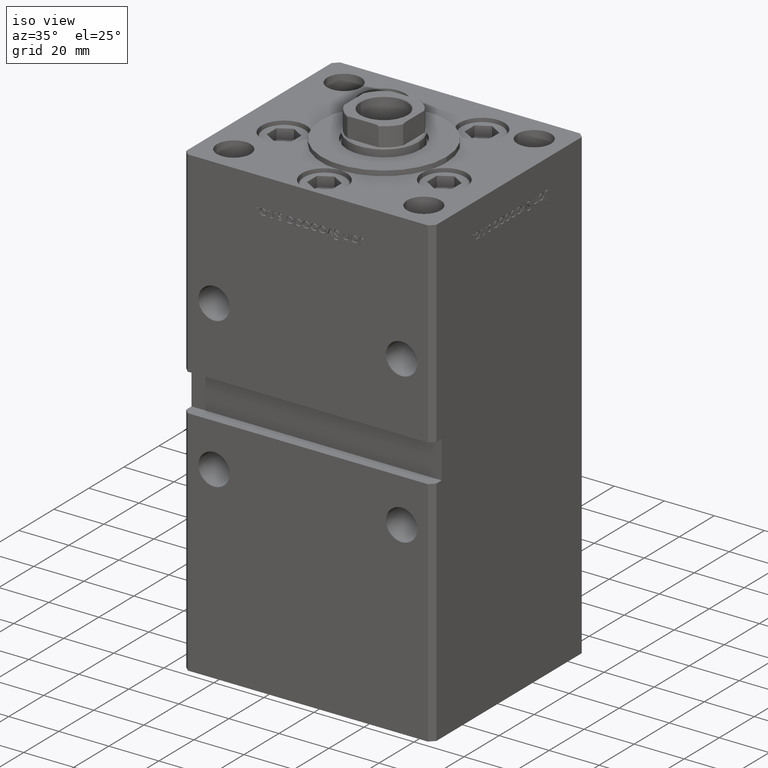
[diagram: clean part render]
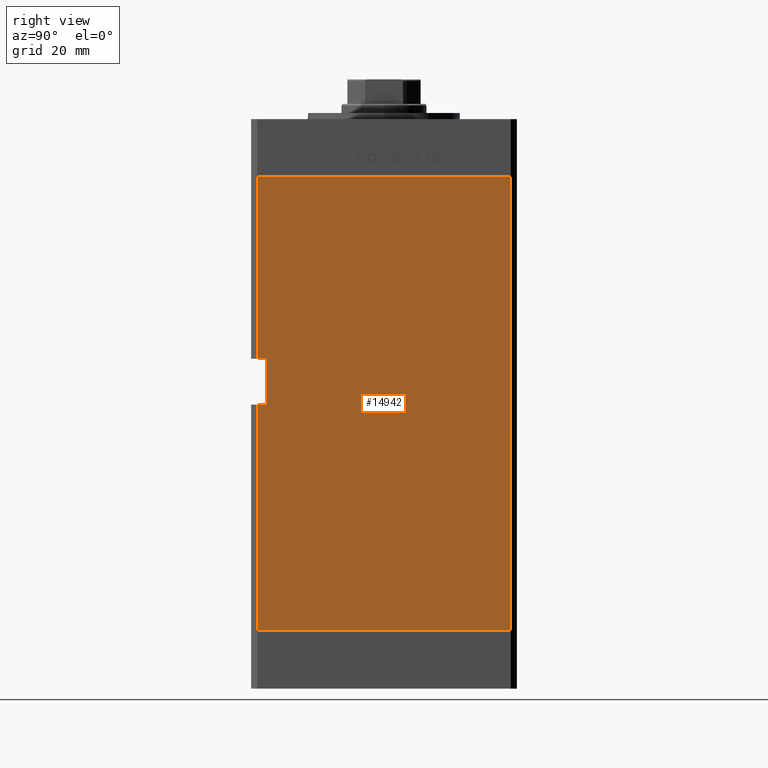
[diagram: tour spotlight — one face highlighted and labeled with its STEP entity id]
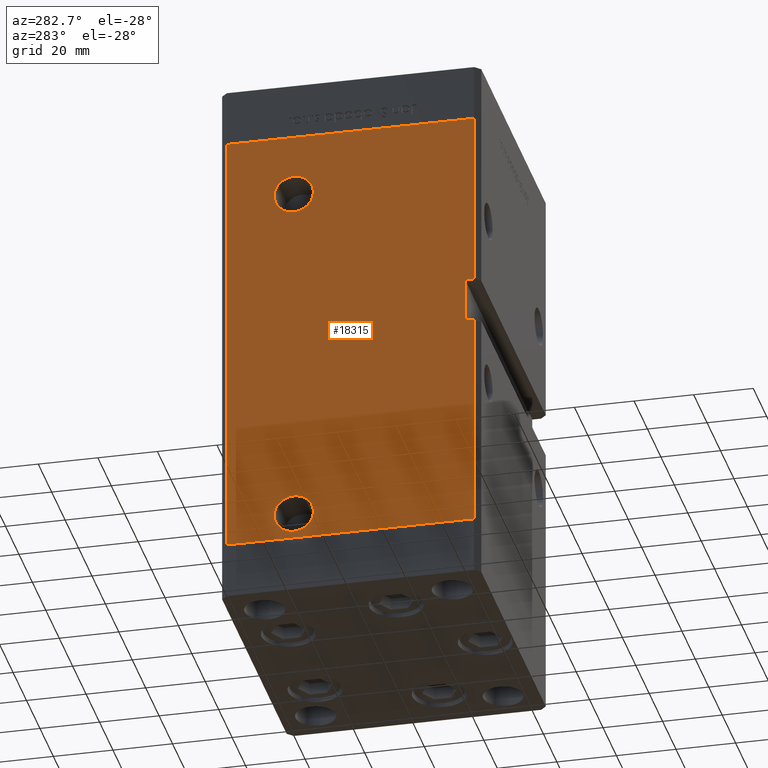
[diagram: tour spotlight — one face highlighted and labeled with its STEP entity id]
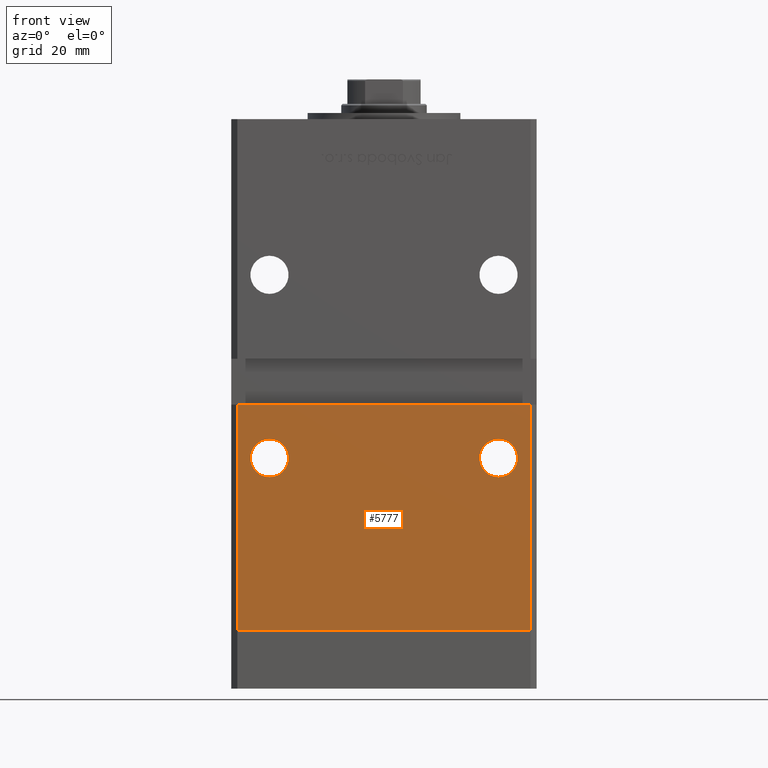
[diagram: tour spotlight — one face highlighted and labeled with its STEP entity id]
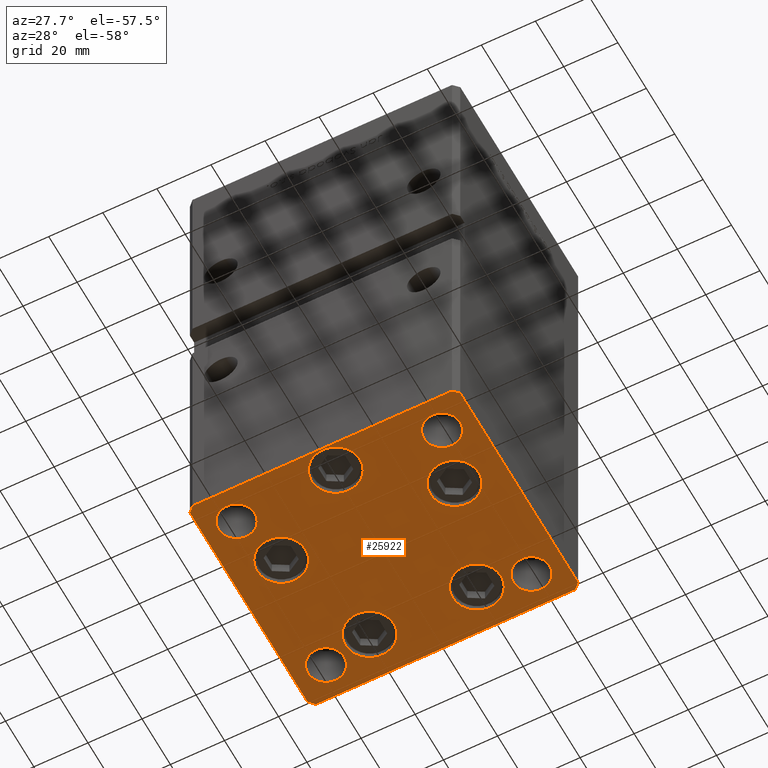
[diagram: tour spotlight — one face highlighted and labeled with its STEP entity id]
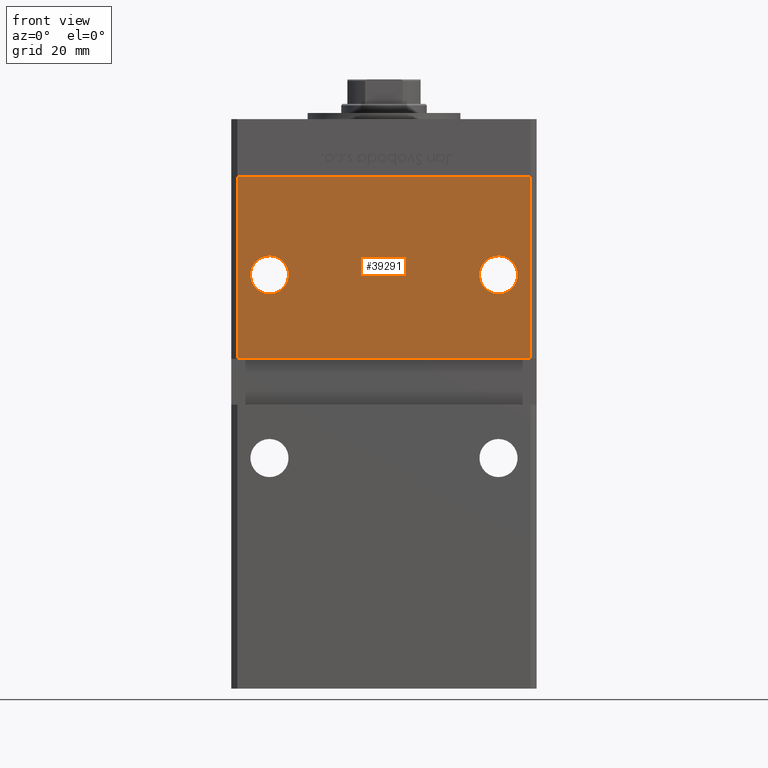
[diagram: tour spotlight — one face highlighted and labeled with its STEP entity id]
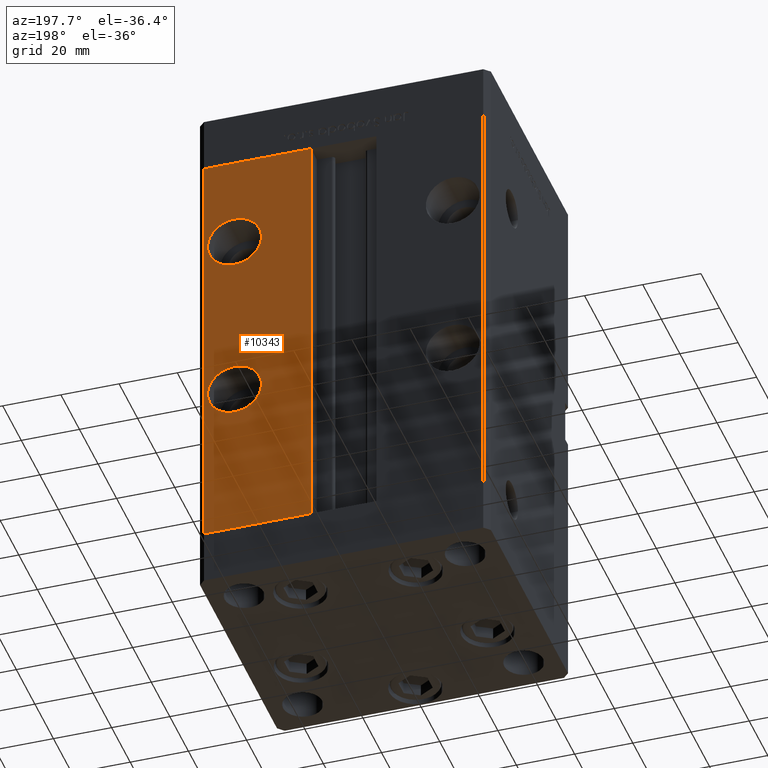
[diagram: tour spotlight — one face highlighted and labeled with its STEP entity id]
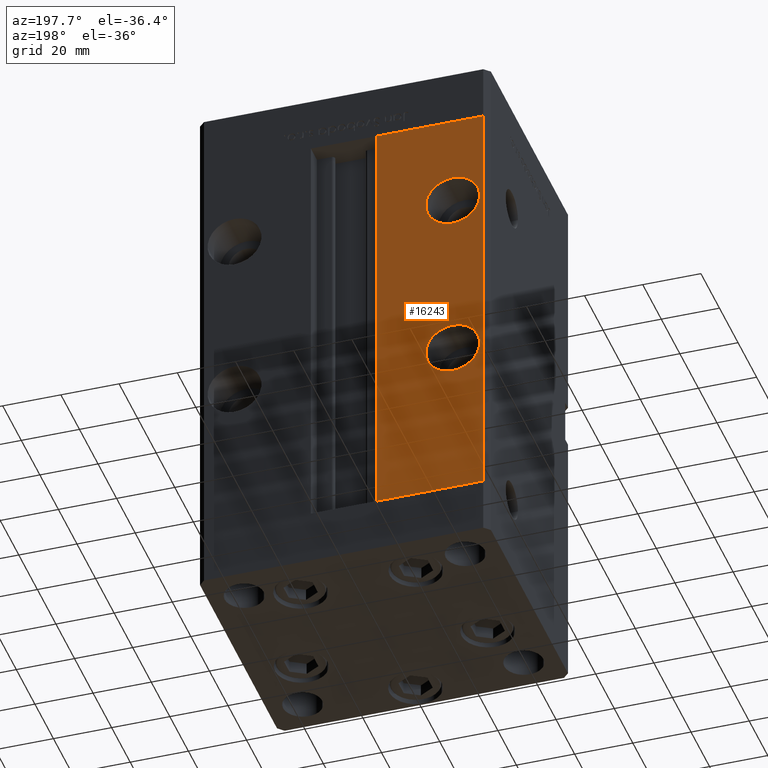
[diagram: tour spotlight — one face highlighted and labeled with its STEP entity id]
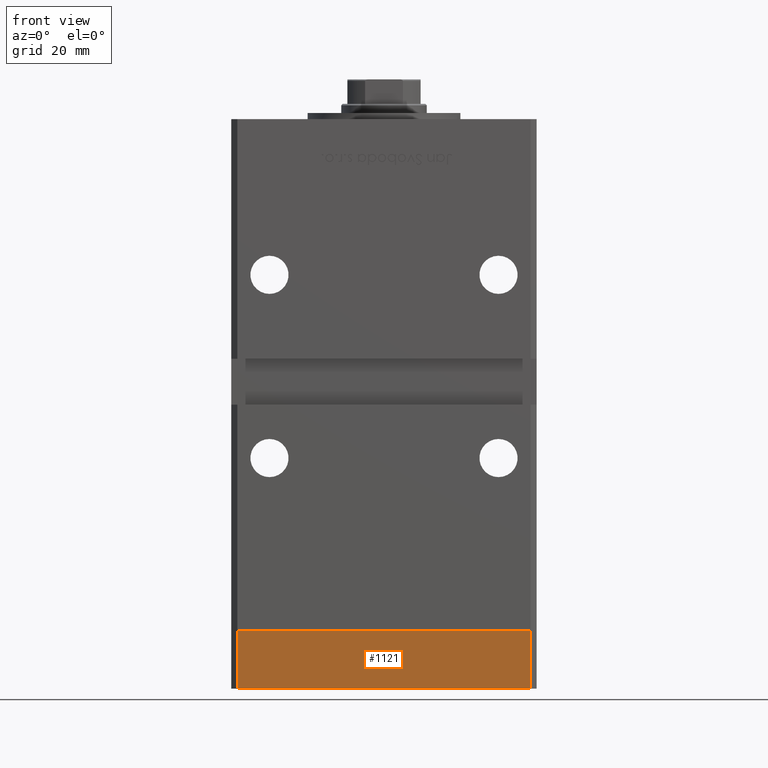
[diagram: tour spotlight — one face highlighted and labeled with its STEP entity id]
A machine part: a face-by-face anatomy tour. The part has 1212 B-rep faces; the first image is the clean iso view, then the 8 largest visible faces are spotlighted one at a time (largest first), each with its STEP entity span.

Face 1 — right view, entity #14942. In plain terms, the highlighted planar face has unit normal (1, -0, 0).
Definition (entity closure, byte-faithful):
#1589 = VECTOR ( 'NONE', #30669, 1000.000000000000000 ) ;
#1679 = CARTESIAN_POINT ( 'NONE',  ( 49.99999999999998579, -41.49999999999999289, 89.00000000000000000 ) ) ;
#2639 = ORIENTED_EDGE ( 'NONE', *, *, #32086, .F. ) ;
#2664 = VECTOR ( 'NONE', #3834, 1000.000000000000000 ) ;
#3834 = DIRECTION ( 'NONE',  ( -0.000000000000000000, -0.000000000000000000, -1.000000000000000000 ) ) ;
#4103 = LINE ( 'NONE', #37204, #2664 ) ;
#4422 = VERTEX_POINT ( 'NONE', #47809 ) ;
#4720 = CARTESIAN_POINT ( 'NONE',  ( 49.99999999999998579, -41.49999999999999289, 0.000000000000000000 ) ) ;
#6198 = CARTESIAN_POINT ( 'NONE',  ( 49.99999999999998579, -38.50000000000000000, 89.00000000000000000 ) ) ;
#6208 = LINE ( 'NONE', #50631, #17947 ) ;
#7280 = EDGE_LOOP ( 'NONE', ( #9872, #39455, #43821, #41298, #17644, #39273, #2639, #47390 ) ) ;
#7552 = VERTEX_POINT ( 'NONE', #15014 ) ;
#8377 = DIRECTION ( 'NONE',  ( -0.000000000000000000, -1.000000000000000000, -0.000000000000000000 ) ) ;
#8479 = CARTESIAN_POINT ( 'NONE',  ( 49.99999999999998579, -38.49999999999999289, 74.00000000000000000 ) ) ;
#9872 = ORIENTED_EDGE ( 'NONE', *, *, #20251, .T. ) ;
#10378 = FACE_OUTER_BOUND ( 'NONE', #7280, .T. ) ;
#11866 = EDGE_CURVE ( 'NONE', #38066, #33753, #39727, .T. ) ;
#12375 = CARTESIAN_POINT ( 'NONE',  ( 50.00000000000001421, 41.49999999999999289, 148.5000000000000000 ) ) ;
#12846 = CARTESIAN_POINT ( 'NONE',  ( 49.99999999999998579, -41.49999999999999289, 148.5000000000000000 ) ) ;
#13620 = EDGE_CURVE ( 'NONE', #38791, #34283, #26376, .T. ) ;
#14349 = EDGE_CURVE ( 'NONE', #4422, #45815, #6208, .T. ) ;
#14942 = ADVANCED_FACE ( 'NONE', ( #10378 ), #27039, .T. ) ;
#15014 = CARTESIAN_POINT ( 'NONE',  ( 49.99999999999998579, -41.49999999999999289, 74.00000000000000000 ) ) ;
#15305 = VECTOR ( 'NONE', #31634, 1000.000000000000000 ) ;
#17089 = EDGE_CURVE ( 'NONE', #38066, #4422, #46516, .T. ) ;
#17463 = LINE ( 'NONE', #34687, #38022 ) ;
#17644 = ORIENTED_EDGE ( 'NONE', *, *, #11866, .T. ) ;
#17730 = DIRECTION ( 'NONE',  ( -0.000000000000000000, -1.000000000000000000, -0.000000000000000000 ) ) ;
#17947 = VECTOR ( 'NONE', #26116, 1000.000000000000000 ) ;
#19512 = CARTESIAN_POINT ( 'NONE',  ( 49.99999999999998579, -38.50000000000000000, 89.00000000000000000 ) ) ;
#19638 = VECTOR ( 'NONE', #38394, 1000.000000000000000 ) ;
#19895 = EDGE_CURVE ( 'NONE', #33753, #41499, #4103, .T. ) ;
#20251 = EDGE_CURVE ( 'NONE', #38791, #7552, #17463, .T. ) ;
#20507 = CARTESIAN_POINT ( 'NONE',  ( 50.00000000000001421, 41.49999999999999289, 148.5000000000000000 ) ) ;
#21139 = VECTOR ( 'NONE', #8377, 1000.000000000000000 ) ;
#22491 = DIRECTION ( 'NONE',  ( 3.344045254895050480E-16, 1.000000000000000000, 0.000000000000000000 ) ) ;
#25792 = CARTESIAN_POINT ( 'NONE',  ( 50.00000000000001421, 41.49999999999999289, 148.5000000000000000 ) ) ;
#26116 = DIRECTION ( 'NONE',  ( -3.344045254895050973E-16, -1.000000000000000000, 0.000000000000000000 ) ) ;
#26376 = LINE ( 'NONE', #6198, #1589 ) ;
#27039 = PLANE ( 'NONE',  #51506 ) ;
#27574 = DIRECTION ( 'NONE',  ( 1.000000000000000000, -3.344045254895050480E-16, 0.000000000000000000 ) ) ;
#28814 = CARTESIAN_POINT ( 'NONE',  ( 49.99999999999998579, -38.50000000000000000, 89.00000000000000000 ) ) ;
#30669 = DIRECTION ( 'NONE',  ( -0.000000000000000000, -0.000000000000000000, 1.000000000000000000 ) ) ;
#31634 = DIRECTION ( 'NONE',  ( -3.344045254895050973E-16, -1.000000000000000000, 0.000000000000000000 ) ) ;
#32086 = EDGE_CURVE ( 'NONE', #34283, #41499, #37443, .T. ) ;
#33753 = VERTEX_POINT ( 'NONE', #39441 ) ;
#34283 = VERTEX_POINT ( 'NONE', #19512 ) ;
#34687 = CARTESIAN_POINT ( 'NONE',  ( 49.99999999999998579, -38.50000000000000000, 74.00000000000000000 ) ) ;
#36969 = VECTOR ( 'NONE', #50293, 1000.000000000000000 ) ;
#37204 = CARTESIAN_POINT ( 'NONE',  ( 49.99999999999998579, -41.49999999999999289, 148.5000000000000000 ) ) ;
#37443 = LINE ( 'NONE', #28814, #21139 ) ;
#38022 = VECTOR ( 'NONE', #17730, 1000.000000000000000 ) ;
#38066 = VERTEX_POINT ( 'NONE', #12375 ) ;
#38394 = DIRECTION ( 'NONE',  ( -0.000000000000000000, -0.000000000000000000, -1.000000000000000000 ) ) ;
#38493 = EDGE_CURVE ( 'NONE', #7552, #45815, #45688, .T. ) ;
#38791 = VERTEX_POINT ( 'NONE', #8479 ) ;
#39273 = ORIENTED_EDGE ( 'NONE', *, *, #19895, .T. ) ;
#39441 = CARTESIAN_POINT ( 'NONE',  ( 49.99999999999998579, -41.49999999999999289, 148.5000000000000000 ) ) ;
#39455 = ORIENTED_EDGE ( 'NONE', *, *, #38493, .T. ) ;
#39727 = LINE ( 'NONE', #20507, #15305 ) ;
#41298 = ORIENTED_EDGE ( 'NONE', *, *, #17089, .F. ) ;
#41499 = VERTEX_POINT ( 'NONE', #1679 ) ;
#43821 = ORIENTED_EDGE ( 'NONE', *, *, #14349, .F. ) ;
#44261 = CARTESIAN_POINT ( 'NONE',  ( 50.00000000000001421, 41.49999999999999289, 148.5000000000000000 ) ) ;
#45688 = LINE ( 'NONE', #12846, #19638 ) ;
#45815 = VERTEX_POINT ( 'NONE', #4720 ) ;
#46516 = LINE ( 'NONE', #25792, #36969 ) ;
#47390 = ORIENTED_EDGE ( 'NONE', *, *, #13620, .F. ) ;
#47809 = CARTESIAN_POINT ( 'NONE',  ( 50.00000000000001421, 41.49999999999999289, 0.000000000000000000 ) ) ;
#50293 = DIRECTION ( 'NONE',  ( -0.000000000000000000, -0.000000000000000000, -1.000000000000000000 ) ) ;
#50631 = CARTESIAN_POINT ( 'NONE',  ( 50.00000000000001421, 41.49999999999999289, 0.000000000000000000 ) ) ;
#51506 = AXIS2_PLACEMENT_3D ( 'NONE', #44261, #27574, #22491 ) ;

Face 2 — auxiliary view, entity #18315. In plain terms, the highlighted planar face has unit normal (1, 0, 0).
Definition (entity closure, byte-faithful):
#126 = DIRECTION ( 'NONE',  ( -1.000000000000000000, -2.275047181608927644E-16, 0.000000000000000000 ) ) ;
#212 = EDGE_CURVE ( 'NONE', #11967, #1251, #5840, .T. ) ;
#1251 = VERTEX_POINT ( 'NONE', #3390 ) ;
#1835 = CARTESIAN_POINT ( 'NONE',  ( -50.00000000000001421, 41.49999999999999289, 148.5000000000000000 ) ) ;
#2087 = DIRECTION ( 'NONE',  ( -1.000000000000000000, -2.275047181608927644E-16, 0.000000000000000000 ) ) ;
#2504 = LINE ( 'NONE', #6804, #30550 ) ;
#2523 = CARTESIAN_POINT ( 'NONE',  ( -50.00000000000000711, 12.41999999999999638, 9.000000000000007105 ) ) ;
#2635 = ORIENTED_EDGE ( 'NONE', *, *, #27792, .F. ) ;
#2850 = ORIENTED_EDGE ( 'NONE', *, *, #20178, .F. ) ;
#2984 = CIRCLE ( 'NONE', #15009, 6.580000000000002736 ) ;
#3029 = DIRECTION ( 'NONE',  ( 3.344045254895050973E-16, -1.000000000000000000, 0.000000000000000000 ) ) ;
#3390 = CARTESIAN_POINT ( 'NONE',  ( -49.99999999999998579, -41.49999999999999289, 89.00000000000000000 ) ) ;
#4229 = ORIENTED_EDGE ( 'NONE', *, *, #51687, .T. ) ;
#4428 = CARTESIAN_POINT ( 'NONE',  ( -50.00000000000000711, 19.00000000000000000, 9.000000000000007105 ) ) ;
#5480 = CIRCLE ( 'NONE', #41591, 6.580000000000016058 ) ;
#5627 = DIRECTION ( 'NONE',  ( 0.000000000000000000, 0.000000000000000000, -1.000000000000000000 ) ) ;
#5840 = LINE ( 'NONE', #17937, #9939 ) ;
#6146 = LINE ( 'NONE', #1835, #7320 ) ;
#6172 = ORIENTED_EDGE ( 'NONE', *, *, #24870, .F. ) ;
#6258 = DIRECTION ( 'NONE',  ( 0.000000000000000000, -1.000000000000000000, 0.000000000000000000 ) ) ;
#6804 = CARTESIAN_POINT ( 'NONE',  ( -50.00000000000001421, 41.49999999999999289, 0.000000000000000000 ) ) ;
#6940 = DIRECTION ( 'NONE',  ( -3.344045254895050480E-16, 1.000000000000000000, 0.000000000000000000 ) ) ;
#6989 = DIRECTION ( 'NONE',  ( -0.000000000000000000, -1.000000000000000000, -0.000000000000000000 ) ) ;
#7116 = VERTEX_POINT ( 'NONE', #7922 ) ;
#7205 = FACE_OUTER_BOUND ( 'NONE', #41692, .T. ) ;
#7320 = VECTOR ( 'NONE', #50834, 1000.000000000000000 ) ;
#7922 = CARTESIAN_POINT ( 'NONE',  ( -50.00000000000001421, 41.49999999999999289, 0.000000000000000000 ) ) ;
#8474 = AXIS2_PLACEMENT_3D ( 'NONE', #46041, #46837, #50617 ) ;
#8747 = EDGE_LOOP ( 'NONE', ( #15741, #6172 ) ) ;
#9939 = VECTOR ( 'NONE', #50793, 1000.000000000000000 ) ;
#10077 = DIRECTION ( 'NONE',  ( -0.000000000000000000, -1.000000000000000000, -0.000000000000000000 ) ) ;
#11967 = VERTEX_POINT ( 'NONE', #29643 ) ;
#13229 = VERTEX_POINT ( 'NONE', #34042 ) ;
#13643 = EDGE_CURVE ( 'NONE', #33078, #13229, #33397, .T. ) ;
#14217 = CARTESIAN_POINT ( 'NONE',  ( -49.99999999999998579, -38.50000000000000000, 74.00000000000000000 ) ) ;
#15009 = AXIS2_PLACEMENT_3D ( 'NONE', #4428, #126, #49106 ) ;
#15741 = ORIENTED_EDGE ( 'NONE', *, *, #13643, .F. ) ;
#15795 = FACE_BOUND ( 'NONE', #23295, .T. ) ;
#16284 = CARTESIAN_POINT ( 'NONE',  ( -49.99999999999998579, -41.49999999999999289, 0.000000000000000000 ) ) ;
#16414 = CARTESIAN_POINT ( 'NONE',  ( -50.00000000000001421, 41.49999999999999289, 148.5000000000000000 ) ) ;
#16725 = VECTOR ( 'NONE', #10077, 1000.000000000000000 ) ;
#17937 = CARTESIAN_POINT ( 'NONE',  ( -49.99999999999998579, -41.49999999999999289, 148.5000000000000000 ) ) ;
#18315 = ADVANCED_FACE ( 'NONE', ( #7205, #15795, #44074 ), #44606, .F. ) ;
#18531 = ORIENTED_EDGE ( 'NONE', *, *, #29456, .T. ) ;
#19412 = CARTESIAN_POINT ( 'NONE',  ( -50.00000000000001421, 41.49999999999999289, 148.5000000000000000 ) ) ;
#20178 = EDGE_CURVE ( 'NONE', #31951, #11967, #28522, .T. ) ;
#21854 = EDGE_CURVE ( 'NONE', #27137, #40972, #2984, .T. ) ;
#22834 = CARTESIAN_POINT ( 'NONE',  ( -49.99999999999998579, -38.50000000000000000, 89.00000000000000000 ) ) ;
#22975 = VERTEX_POINT ( 'NONE', #48727 ) ;
#23295 = EDGE_LOOP ( 'NONE', ( #51237, #26341 ) ) ;
#23618 = DIRECTION ( 'NONE',  ( 1.000000000000000000, 3.344045254895050480E-16, -0.000000000000000000 ) ) ;
#24130 = VECTOR ( 'NONE', #41452, 1000.000000000000000 ) ;
#24345 = ORIENTED_EDGE ( 'NONE', *, *, #30121, .T. ) ;
#24870 = EDGE_CURVE ( 'NONE', #13229, #33078, #5480, .T. ) ;
#25743 = ORIENTED_EDGE ( 'NONE', *, *, #25892, .F. ) ;
#25892 = EDGE_CURVE ( 'NONE', #22975, #35220, #49981, .T. ) ;
#26341 = ORIENTED_EDGE ( 'NONE', *, *, #51913, .F. ) ;
#26487 = EDGE_CURVE ( 'NONE', #39407, #29432, #38991, .T. ) ;
#26702 = CARTESIAN_POINT ( 'NONE',  ( -50.00000000000000711, 19.00000000000000000, 127.5000000000000000 ) ) ;
#27137 = VERTEX_POINT ( 'NONE', #2523 ) ;
#27792 = EDGE_CURVE ( 'NONE', #29432, #22975, #30245, .T. ) ;
#28522 = LINE ( 'NONE', #16414, #24130 ) ;
#29432 = VERTEX_POINT ( 'NONE', #14217 ) ;
#29456 = EDGE_CURVE ( 'NONE', #31951, #7116, #6146, .T. ) ;
#29643 = CARTESIAN_POINT ( 'NONE',  ( -49.99999999999998579, -41.49999999999999289, 148.5000000000000000 ) ) ;
#30114 = AXIS2_PLACEMENT_3D ( 'NONE', #32207, #23618, #6940 ) ;
#30121 = EDGE_CURVE ( 'NONE', #7116, #35220, #2504, .T. ) ;
#30245 = LINE ( 'NONE', #51262, #16725 ) ;
#30550 = VECTOR ( 'NONE', #3029, 1000.000000000000000 ) ;
#31700 = ORIENTED_EDGE ( 'NONE', *, *, #26487, .F. ) ;
#31951 = VERTEX_POINT ( 'NONE', #19412 ) ;
#32207 = CARTESIAN_POINT ( 'NONE',  ( -50.00000000000001421, 41.49999999999999289, 148.5000000000000000 ) ) ;
#33078 = VERTEX_POINT ( 'NONE', #48499 ) ;
#33397 = CIRCLE ( 'NONE', #8474, 6.580000000000016058 ) ;
#34042 = CARTESIAN_POINT ( 'NONE',  ( -50.00000000000000711, 25.58000000000001606, 127.5000000000000000 ) ) ;
#35220 = VERTEX_POINT ( 'NONE', #16284 ) ;
#35304 = DIRECTION ( 'NONE',  ( -1.000000000000000000, -2.275047181608927644E-16, 0.000000000000000000 ) ) ;
#35449 = CARTESIAN_POINT ( 'NONE',  ( -50.00000000000000711, 19.00000000000000000, 9.000000000000007105 ) ) ;
#37132 = CIRCLE ( 'NONE', #48303, 6.580000000000002736 ) ;
#37334 = VECTOR ( 'NONE', #5627, 1000.000000000000000 ) ;
#38991 = LINE ( 'NONE', #22834, #37334 ) ;
#39407 = VERTEX_POINT ( 'NONE', #40256 ) ;
#40256 = CARTESIAN_POINT ( 'NONE',  ( -49.99999999999998579, -38.50000000000000000, 89.00000000000000000 ) ) ;
#40972 = VERTEX_POINT ( 'NONE', #47819 ) ;
#41452 = DIRECTION ( 'NONE',  ( 3.344045254895050973E-16, -1.000000000000000000, 0.000000000000000000 ) ) ;
#41591 = AXIS2_PLACEMENT_3D ( 'NONE', #26702, #35304, #6258 ) ;
#41692 = EDGE_LOOP ( 'NONE', ( #25743, #2635, #31700, #4229, #44202, #2850, #18531, #24345 ) ) ;
#43263 = DIRECTION ( 'NONE',  ( 0.000000000000000000, -1.000000000000000000, 0.000000000000000000 ) ) ;
#43858 = LINE ( 'NONE', #48172, #50005 ) ;
#44074 = FACE_BOUND ( 'NONE', #8747, .T. ) ;
#44202 = ORIENTED_EDGE ( 'NONE', *, *, #212, .F. ) ;
#44606 = PLANE ( 'NONE',  #30114 ) ;
#45684 = CARTESIAN_POINT ( 'NONE',  ( -49.99999999999998579, -41.49999999999999289, 148.5000000000000000 ) ) ;
#46041 = CARTESIAN_POINT ( 'NONE',  ( -50.00000000000000711, 19.00000000000000000, 127.5000000000000000 ) ) ;
#46743 = VECTOR ( 'NONE', #49440, 1000.000000000000000 ) ;
#46837 = DIRECTION ( 'NONE',  ( -1.000000000000000000, -2.275047181608927644E-16, 0.000000000000000000 ) ) ;
#47819 = CARTESIAN_POINT ( 'NONE',  ( -50.00000000000000711, 25.58000000000000185, 9.000000000000007105 ) ) ;
#48172 = CARTESIAN_POINT ( 'NONE',  ( -49.99999999999998579, -38.50000000000000000, 89.00000000000000000 ) ) ;
#48303 = AXIS2_PLACEMENT_3D ( 'NONE', #35449, #2087, #43263 ) ;
#48499 = CARTESIAN_POINT ( 'NONE',  ( -50.00000000000000711, 12.41999999999998394, 127.5000000000000000 ) ) ;
#48727 = CARTESIAN_POINT ( 'NONE',  ( -49.99999999999998579, -41.49999999999999289, 74.00000000000000000 ) ) ;
#49106 = DIRECTION ( 'NONE',  ( 0.000000000000000000, -1.000000000000000000, 0.000000000000000000 ) ) ;
#49440 = DIRECTION ( 'NONE',  ( -0.000000000000000000, -0.000000000000000000, -1.000000000000000000 ) ) ;
#49981 = LINE ( 'NONE', #45684, #46743 ) ;
#50005 = VECTOR ( 'NONE', #6989, 1000.000000000000000 ) ;
#50617 = DIRECTION ( 'NONE',  ( 0.000000000000000000, -1.000000000000000000, 0.000000000000000000 ) ) ;
#50793 = DIRECTION ( 'NONE',  ( -0.000000000000000000, -0.000000000000000000, -1.000000000000000000 ) ) ;
#50834 = DIRECTION ( 'NONE',  ( -0.000000000000000000, -0.000000000000000000, -1.000000000000000000 ) ) ;
#51237 = ORIENTED_EDGE ( 'NONE', *, *, #21854, .F. ) ;
#51262 = CARTESIAN_POINT ( 'NONE',  ( -49.99999999999998579, -38.50000000000000000, 74.00000000000000000 ) ) ;
#51687 = EDGE_CURVE ( 'NONE', #39407, #1251, #43858, .T. ) ;
#51913 = EDGE_CURVE ( 'NONE', #40972, #27137, #37132, .T. ) ;

Face 3 — front view, entity #5777. In plain terms, the highlighted planar face has unit normal (0, 1, 0).
Definition (entity closure, byte-faithful):
#95 = EDGE_CURVE ( 'NONE', #32555, #11051, #3188, .T. ) ;
#169 = FACE_BOUND ( 'NONE', #10834, .T. ) ;
#1892 = VECTOR ( 'NONE', #21417, 1000.000000000000000 ) ;
#2289 = LINE ( 'NONE', #19213, #22414 ) ;
#2920 = DIRECTION ( 'NONE',  ( 1.000000000000000000, 0.000000000000000000, 0.000000000000000000 ) ) ;
#3049 = VECTOR ( 'NONE', #2920, 1000.000000000000000 ) ;
#3188 = LINE ( 'NONE', #39800, #3049 ) ;
#3732 = CARTESIAN_POINT ( 'NONE',  ( 47.99999999999998579, -43.50000000000000000, 74.00000000000000000 ) ) ;
#3958 = ORIENTED_EDGE ( 'NONE', *, *, #5819, .T. ) ;
#3990 = DIRECTION ( 'NONE',  ( 0.000000000000000000, 0.000000000000000000, 1.000000000000000000 ) ) ;
#5024 = DIRECTION ( 'NONE',  ( 0.000000000000000000, 1.000000000000000000, 0.000000000000000000 ) ) ;
#5045 = ORIENTED_EDGE ( 'NONE', *, *, #48404, .F. ) ;
#5200 = CIRCLE ( 'NONE', #21520, 6.249999999999998224 ) ;
#5731 = FACE_OUTER_BOUND ( 'NONE', #8205, .T. ) ;
#5777 = ADVANCED_FACE ( 'NONE', ( #26173, #169, #5731 ), #49417, .F. ) ;
#5819 = EDGE_CURVE ( 'NONE', #18922, #45163, #7386, .T. ) ;
#6029 = CARTESIAN_POINT ( 'NONE',  ( 47.99999999999998579, -43.50000000000000000, 0.000000000000000000 ) ) ;
#7386 = CIRCLE ( 'NONE', #32271, 6.249999999999998224 ) ;
#8205 = EDGE_LOOP ( 'NONE', ( #5045, #20569, #10398, #32687 ) ) ;
#8621 = VERTEX_POINT ( 'NONE', #3732 ) ;
#8875 = DIRECTION ( 'NONE',  ( 0.000000000000000000, 0.000000000000000000, 1.000000000000000000 ) ) ;
#10320 = ORIENTED_EDGE ( 'NONE', *, *, #45562, .T. ) ;
#10398 = ORIENTED_EDGE ( 'NONE', *, *, #52844, .T. ) ;
#10834 = EDGE_LOOP ( 'NONE', ( #10320, #12639 ) ) ;
#11051 = VERTEX_POINT ( 'NONE', #6029 ) ;
#12541 = AXIS2_PLACEMENT_3D ( 'NONE', #42593, #48237, #52276 ) ;
#12639 = ORIENTED_EDGE ( 'NONE', *, *, #26401, .T. ) ;
#13173 = DIRECTION ( 'NONE',  ( 0.000000000000000000, 1.000000000000000000, 0.000000000000000000 ) ) ;
#14291 = LINE ( 'NONE', #30687, #15350 ) ;
#15001 = CIRCLE ( 'NONE', #19255, 6.249999999999998224 ) ;
#15350 = VECTOR ( 'NONE', #26661, 1000.000000000000000 ) ;
#16089 = CARTESIAN_POINT ( 'NONE',  ( 37.50000000000000000, -43.50000000000000000, 56.49999999999998579 ) ) ;
#18580 = EDGE_CURVE ( 'NONE', #45163, #18922, #5200, .T. ) ;
#18922 = VERTEX_POINT ( 'NONE', #33739 ) ;
#19213 = CARTESIAN_POINT ( 'NONE',  ( 47.99999999999998579, -43.50000000000000000, 148.5000000000000000 ) ) ;
#19255 = AXIS2_PLACEMENT_3D ( 'NONE', #50052, #13173, #8875 ) ;
#20121 = DIRECTION ( 'NONE',  ( 0.000000000000000000, 1.000000000000000000, 0.000000000000000000 ) ) ;
#20569 = ORIENTED_EDGE ( 'NONE', *, *, #37978, .F. ) ;
#21417 = DIRECTION ( 'NONE',  ( -0.000000000000000000, -0.000000000000000000, -1.000000000000000000 ) ) ;
#21426 = DIRECTION ( 'NONE',  ( 0.000000000000000000, 0.000000000000000000, 1.000000000000000000 ) ) ;
#21520 = AXIS2_PLACEMENT_3D ( 'NONE', #53215, #5024, #21426 ) ;
#22414 = VECTOR ( 'NONE', #48031, 1000.000000000000000 ) ;
#22678 = DIRECTION ( 'NONE',  ( 0.000000000000000000, 0.000000000000000000, 1.000000000000000000 ) ) ;
#24239 = CARTESIAN_POINT ( 'NONE',  ( -47.99999999999998579, -43.50000000000000000, 74.00000000000000000 ) ) ;
#24386 = CARTESIAN_POINT ( 'NONE',  ( -47.99999999999998579, -43.50000000000000000, 0.000000000000000000 ) ) ;
#24908 = CIRCLE ( 'NONE', #53268, 6.249999999999998224 ) ;
#25459 = CARTESIAN_POINT ( 'NONE',  ( -47.99999999999998579, -43.50000000000000000, 148.5000000000000000 ) ) ;
#26173 = FACE_BOUND ( 'NONE', #30370, .T. ) ;
#26401 = EDGE_CURVE ( 'NONE', #52304, #44465, #15001, .T. ) ;
#26661 = DIRECTION ( 'NONE',  ( 1.000000000000000000, 0.000000000000000000, 0.000000000000000000 ) ) ;
#30370 = EDGE_LOOP ( 'NONE', ( #3958, #43825 ) ) ;
#30687 = CARTESIAN_POINT ( 'NONE',  ( -49.99999999999998579, -43.50000000000000000, 74.00000000000000000 ) ) ;
#32271 = AXIS2_PLACEMENT_3D ( 'NONE', #35313, #51742, #22678 ) ;
#32555 = VERTEX_POINT ( 'NONE', #24386 ) ;
#32687 = ORIENTED_EDGE ( 'NONE', *, *, #95, .T. ) ;
#33739 = CARTESIAN_POINT ( 'NONE',  ( -37.50000000000000000, -43.50000000000000000, 62.74999999999998579 ) ) ;
#34732 = CARTESIAN_POINT ( 'NONE',  ( 37.50000000000000000, -43.50000000000000000, 50.24999999999998579 ) ) ;
#35313 = CARTESIAN_POINT ( 'NONE',  ( -37.50000000000000000, -43.50000000000000000, 56.49999999999998579 ) ) ;
#36647 = VERTEX_POINT ( 'NONE', #24239 ) ;
#37685 = CARTESIAN_POINT ( 'NONE',  ( -37.50000000000000000, -43.50000000000000000, 50.24999999999998579 ) ) ;
#37978 = EDGE_CURVE ( 'NONE', #36647, #8621, #14291, .T. ) ;
#39040 = CARTESIAN_POINT ( 'NONE',  ( 37.50000000000000000, -43.50000000000000000, 62.74999999999998579 ) ) ;
#39800 = CARTESIAN_POINT ( 'NONE',  ( -47.99999999999998579, -43.50000000000000000, 0.000000000000000000 ) ) ;
#42593 = CARTESIAN_POINT ( 'NONE',  ( -47.99999999999998579, -43.50000000000000000, 148.5000000000000000 ) ) ;
#43825 = ORIENTED_EDGE ( 'NONE', *, *, #18580, .T. ) ;
#44465 = VERTEX_POINT ( 'NONE', #39040 ) ;
#45163 = VERTEX_POINT ( 'NONE', #37685 ) ;
#45562 = EDGE_CURVE ( 'NONE', #44465, #52304, #24908, .T. ) ;
#45923 = LINE ( 'NONE', #25459, #1892 ) ;
#48031 = DIRECTION ( 'NONE',  ( -0.000000000000000000, -0.000000000000000000, -1.000000000000000000 ) ) ;
#48237 = DIRECTION ( 'NONE',  ( 0.000000000000000000, 1.000000000000000000, 0.000000000000000000 ) ) ;
#48404 = EDGE_CURVE ( 'NONE', #8621, #11051, #2289, .T. ) ;
#49417 = PLANE ( 'NONE',  #12541 ) ;
#50052 = CARTESIAN_POINT ( 'NONE',  ( 37.50000000000000000, -43.50000000000000000, 56.49999999999998579 ) ) ;
#51742 = DIRECTION ( 'NONE',  ( 0.000000000000000000, 1.000000000000000000, 0.000000000000000000 ) ) ;
#52276 = DIRECTION ( 'NONE',  ( 0.000000000000000000, -0.000000000000000000, 1.000000000000000000 ) ) ;
#52304 = VERTEX_POINT ( 'NONE', #34732 ) ;
#52844 = EDGE_CURVE ( 'NONE', #36647, #32555, #45923, .T. ) ;
#53215 = CARTESIAN_POINT ( 'NONE',  ( -37.50000000000000000, -43.50000000000000000, 56.49999999999998579 ) ) ;
#53268 = AXIS2_PLACEMENT_3D ( 'NONE', #16089, #20121, #3990 ) ;

Face 4 — auxiliary view, entity #25922. In plain terms, the highlighted planar face has unit normal (0, 0, -1).
Definition (entity closure, byte-faithful):
#105 = AXIS2_PLACEMENT_3D ( 'NONE', #37676, #42237, #1319 ) ;
#180 = CARTESIAN_POINT ( 'NONE',  ( -37.99999999999999289, -31.50000000000000000, 0.000000000000000000 ) ) ;
#336 = AXIS2_PLACEMENT_3D ( 'NONE', #40566, #722, #8000 ) ;
#587 = ORIENTED_EDGE ( 'NONE', *, *, #29766, .T. ) ;
#722 = DIRECTION ( 'NONE',  ( -0.000000000000000000, 0.000000000000000000, 1.000000000000000000 ) ) ;
#1319 = DIRECTION ( 'NONE',  ( 1.000000000000000000, 0.000000000000000000, 0.000000000000000000 ) ) ;
#2208 = AXIS2_PLACEMENT_3D ( 'NONE', #31553, #47448, #27249 ) ;
#2282 = EDGE_CURVE ( 'NONE', #15674, #49110, #4832, .T. ) ;
#2652 = EDGE_CURVE ( 'NONE', #24432, #7599, #24594, .T. ) ;
#2930 = ORIENTED_EDGE ( 'NONE', *, *, #33491, .T. ) ;
#3001 = CARTESIAN_POINT ( 'NONE',  ( -47.99999999999999289, -43.50000000000001421, 0.000000000000000000 ) ) ;
#3961 = FACE_BOUND ( 'NONE', #44935, .T. ) ;
#4080 = DIRECTION ( 'NONE',  ( 1.000000000000000000, 0.000000000000000000, 0.000000000000000000 ) ) ;
#4359 = VERTEX_POINT ( 'NONE', #16385 ) ;
#4388 = DIRECTION ( 'NONE',  ( 1.000000000000000000, 0.000000000000000000, 0.000000000000000000 ) ) ;
#4760 = FACE_BOUND ( 'NONE', #36951, .T. ) ;
#4832 = CIRCLE ( 'NONE', #20242, 9.000000000000001776 ) ;
#4894 = EDGE_CURVE ( 'NONE', #31559, #38524, #40665, .T. ) ;
#5344 = ORIENTED_EDGE ( 'NONE', *, *, #45878, .T. ) ;
#5548 = LINE ( 'NONE', #42681, #21058 ) ;
#5577 = ORIENTED_EDGE ( 'NONE', *, *, #40132, .F. ) ;
#5763 = CARTESIAN_POINT ( 'NONE',  ( -38.00000000000000000, 31.50000000000000000, 0.000000000000000000 ) ) ;
#5788 = DIRECTION ( 'NONE',  ( 1.000000000000000000, 0.000000000000000000, 0.000000000000000000 ) ) ;
#6586 = AXIS2_PLACEMENT_3D ( 'NONE', #22470, #21663, #14658 ) ;
#7323 = CARTESIAN_POINT ( 'NONE',  ( 9.000000000000003553, -34.00000000000000000, 0.000000000000000000 ) ) ;
#7333 = ORIENTED_EDGE ( 'NONE', *, *, #33137, .T. ) ;
#7599 = VERTEX_POINT ( 'NONE', #10188 ) ;
#7629 = CARTESIAN_POINT ( 'NONE',  ( -44.74999999999999289, -31.50000000000000000, 0.000000000000000000 ) ) ;
#8000 = DIRECTION ( 'NONE',  ( 1.000000000000000000, 0.000000000000000000, 0.000000000000000000 ) ) ;
#8055 = DIRECTION ( 'NONE',  ( -0.000000000000000000, 0.000000000000000000, 1.000000000000000000 ) ) ;
#8188 = VERTEX_POINT ( 'NONE', #19937 ) ;
#8358 = CARTESIAN_POINT ( 'NONE',  ( 38.00000000000000000, -31.49999999999999289, 0.000000000000000000 ) ) ;
#9022 = CARTESIAN_POINT ( 'NONE',  ( 47.99999999999990763, 43.50000000000000000, 0.000000000000000000 ) ) ;
#9062 = PLANE ( 'NONE',  #336 ) ;
#9071 = CARTESIAN_POINT ( 'NONE',  ( -31.25000000000000000, 31.50000000000000000, 0.000000000000000000 ) ) ;
#9118 = CARTESIAN_POINT ( 'NONE',  ( 4.163799117101000559E-15, -34.00000000000000000, 0.000000000000000000 ) ) ;
#9351 = DIRECTION ( 'NONE',  ( -0.000000000000000000, 0.000000000000000000, 1.000000000000000000 ) ) ;
#9614 = DIRECTION ( 'NONE',  ( 1.000000000000000000, 0.000000000000000000, 0.000000000000000000 ) ) ;
#9799 = DIRECTION ( 'NONE',  ( -0.000000000000000000, 0.000000000000000000, 1.000000000000000000 ) ) ;
#10188 = CARTESIAN_POINT ( 'NONE',  ( 28.82068048781372838, 27.62500000000000000, 0.000000000000000000 ) ) ;
#10844 = ORIENTED_EDGE ( 'NONE', *, *, #52708, .T. ) ;
#11800 = CARTESIAN_POINT ( 'NONE',  ( 44.75000000000000000, -31.49999999999999289, 0.000000000000000000 ) ) ;
#11914 = VERTEX_POINT ( 'NONE', #18729 ) ;
#11992 = CARTESIAN_POINT ( 'NONE',  ( -44.75000000000000000, 31.50000000000000000, 0.000000000000000000 ) ) ;
#12364 = DIRECTION ( 'NONE',  ( 1.000000000000000000, 0.000000000000000000, 0.000000000000000000 ) ) ;
#12462 = CARTESIAN_POINT ( 'NONE',  ( -32.05550741379015278, -11.33333333333333925, 0.000000000000000000 ) ) ;
#12781 = CARTESIAN_POINT ( 'NONE',  ( -31.24999999999999289, -31.50000000000000000, 0.000000000000000000 ) ) ;
#12847 = ORIENTED_EDGE ( 'NONE', *, *, #20233, .T. ) ;
#12966 = DIRECTION ( 'NONE',  ( 0.000000000000000000, -0.000000000000000000, -1.000000000000000000 ) ) ;
#13105 = FACE_BOUND ( 'NONE', #51481, .T. ) ;
#13304 = DIRECTION ( 'NONE',  ( 1.000000000000000000, 0.000000000000000000, 0.000000000000000000 ) ) ;
#13351 = DIRECTION ( 'NONE',  ( 0.000000000000000000, -0.000000000000000000, -1.000000000000000000 ) ) ;
#13453 = DIRECTION ( 'NONE',  ( 0.000000000000000000, -0.000000000000000000, -1.000000000000000000 ) ) ;
#13502 = ORIENTED_EDGE ( 'NONE', *, *, #23775, .T. ) ;
#13595 = CARTESIAN_POINT ( 'NONE',  ( 32.05550741379015278, -11.33333333333333037, 0.000000000000000000 ) ) ;
#14461 = CARTESIAN_POINT ( 'NONE',  ( -50.00000000000000711, 41.49999999999995026, 0.000000000000000000 ) ) ;
#14658 = DIRECTION ( 'NONE',  ( 1.000000000000000000, 0.000000000000000000, 0.000000000000000000 ) ) ;
#14673 = CARTESIAN_POINT ( 'NONE',  ( 47.99999999999999289, -43.50000000000001421, 0.000000000000000000 ) ) ;
#15011 = VERTEX_POINT ( 'NONE', #20279 ) ;
#15084 = ORIENTED_EDGE ( 'NONE', *, *, #47668, .T. ) ;
#15310 = CIRCLE ( 'NONE', #35938, 6.749999999999999112 ) ;
#15674 = VERTEX_POINT ( 'NONE', #43251 ) ;
#16097 = AXIS2_PLACEMENT_3D ( 'NONE', #50530, #9351, #9614 ) ;
#16145 = AXIS2_PLACEMENT_3D ( 'NONE', #51005, #43444, #5788 ) ;
#16385 = CARTESIAN_POINT ( 'NONE',  ( -28.82068048781373548, 27.62499999999999645, 0.000000000000000000 ) ) ;
#16439 = CARTESIAN_POINT ( 'NONE',  ( -50.00000000000000711, 41.49999999999995026, 0.000000000000000000 ) ) ;
#16637 = EDGE_CURVE ( 'NONE', #25787, #32864, #31075, .T. ) ;
#17124 = FACE_BOUND ( 'NONE', #52807, .T. ) ;
#17441 = LINE ( 'NONE', #21491, #46464 ) ;
#17522 = CARTESIAN_POINT ( 'NONE',  ( 38.00000000000000000, 31.49999999999999289, 0.000000000000000000 ) ) ;
#17564 = VECTOR ( 'NONE', #45763, 1000.000000000000000 ) ;
#18069 = EDGE_CURVE ( 'NONE', #38524, #41633, #17441, .T. ) ;
#18266 = ORIENTED_EDGE ( 'NONE', *, *, #2652, .T. ) ;
#18267 = VERTEX_POINT ( 'NONE', #26592 ) ;
#18729 = CARTESIAN_POINT ( 'NONE',  ( -48.00000000000000711, 43.49999999999996447, 0.000000000000000000 ) ) ;
#18776 = DIRECTION ( 'NONE',  ( -0.7071067811865474617, 0.7071067811865474617, 0.000000000000000000 ) ) ;
#18999 = CARTESIAN_POINT ( 'NONE',  ( -48.00000000000000711, 43.49999999999996447, 0.000000000000000000 ) ) ;
#19485 = DIRECTION ( 'NONE',  ( 0.7071067811865463515, 0.7071067811865487940, 0.000000000000000000 ) ) ;
#19554 = CIRCLE ( 'NONE', #35891, 9.000000000000001776 ) ;
#19673 = EDGE_CURVE ( 'NONE', #26710, #35252, #28428, .T. ) ;
#19937 = CARTESIAN_POINT ( 'NONE',  ( -10.82068048781373903, 27.62499999999999645, 0.000000000000000000 ) ) ;
#19956 = EDGE_CURVE ( 'NONE', #32338, #15011, #48195, .T. ) ;
#20170 = VECTOR ( 'NONE', #35949, 1000.000000000000000 ) ;
#20233 = EDGE_CURVE ( 'NONE', #53027, #23366, #37187, .T. ) ;
#20242 = AXIS2_PLACEMENT_3D ( 'NONE', #22335, #25566, #41986 ) ;
#20279 = CARTESIAN_POINT ( 'NONE',  ( 44.75000000000000000, 31.49999999999999289, 0.000000000000000000 ) ) ;
#20318 = CARTESIAN_POINT ( 'NONE',  ( 32.05550741379015278, -11.33333333333333037, 0.000000000000000000 ) ) ;
#20359 = FACE_BOUND ( 'NONE', #39593, .T. ) ;
#20761 = CARTESIAN_POINT ( 'NONE',  ( -37.99999999999999289, -31.50000000000000000, 0.000000000000000000 ) ) ;
#21058 = VECTOR ( 'NONE', #22495, 1000.000000000000000 ) ;
#21103 = CIRCLE ( 'NONE', #2208, 9.000000000000000000 ) ;
#21163 = FACE_OUTER_BOUND ( 'NONE', #43100, .T. ) ;
#21436 = ORIENTED_EDGE ( 'NONE', *, *, #27663, .T. ) ;
#21475 = CARTESIAN_POINT ( 'NONE',  ( 31.25000000000000000, 31.49999999999999289, 0.000000000000000000 ) ) ;
#21491 = CARTESIAN_POINT ( 'NONE',  ( -50.00000000000000000, -41.50000000000000000, 0.000000000000000000 ) ) ;
#21663 = DIRECTION ( 'NONE',  ( 0.000000000000000000, -0.000000000000000000, -1.000000000000000000 ) ) ;
#21668 = CARTESIAN_POINT ( 'NONE',  ( 23.05550741379014923, -11.33333333333333037, 0.000000000000000000 ) ) ;
#21748 = DIRECTION ( 'NONE',  ( 0.000000000000000000, -0.000000000000000000, -1.000000000000000000 ) ) ;
#21752 = EDGE_LOOP ( 'NONE', ( #38800, #31427 ) ) ;
#22335 = CARTESIAN_POINT ( 'NONE',  ( -32.05550741379015278, -11.33333333333333925, 0.000000000000000000 ) ) ;
#22338 = AXIS2_PLACEMENT_3D ( 'NONE', #20318, #29986, #39143 ) ;
#22470 = CARTESIAN_POINT ( 'NONE',  ( 19.82068048781373193, 27.62500000000000000, 0.000000000000000000 ) ) ;
#22495 = DIRECTION ( 'NONE',  ( -1.000000000000000000, -3.614007241618350743E-16, 0.000000000000000000 ) ) ;
#22649 = EDGE_CURVE ( 'NONE', #41633, #25787, #34818, .T. ) ;
#23049 = EDGE_CURVE ( 'NONE', #32864, #37615, #50593, .T. ) ;
#23366 = VERTEX_POINT ( 'NONE', #11800 ) ;
#23775 = EDGE_CURVE ( 'NONE', #31697, #44285, #41557, .T. ) ;
#23876 = CIRCLE ( 'NONE', #16145, 8.999999999999998224 ) ;
#23945 = EDGE_LOOP ( 'NONE', ( #13502, #7333 ) ) ;
#24432 = VERTEX_POINT ( 'NONE', #52398 ) ;
#24481 = ORIENTED_EDGE ( 'NONE', *, *, #4894, .T. ) ;
#24543 = VERTEX_POINT ( 'NONE', #21668 ) ;
#24594 = CIRCLE ( 'NONE', #6586, 8.999999999999998224 ) ;
#24636 = DIRECTION ( 'NONE',  ( 0.000000000000000000, -0.000000000000000000, -1.000000000000000000 ) ) ;
#25011 = CARTESIAN_POINT ( 'NONE',  ( -38.00000000000000000, 31.50000000000000000, 0.000000000000000000 ) ) ;
#25123 = CARTESIAN_POINT ( 'NONE',  ( 50.00000000000000000, -41.49999999999999289, 0.000000000000000000 ) ) ;
#25327 = ORIENTED_EDGE ( 'NONE', *, *, #49656, .T. ) ;
#25528 = DIRECTION ( 'NONE',  ( 1.000000000000000000, 0.000000000000000000, 0.000000000000000000 ) ) ;
#25566 = DIRECTION ( 'NONE',  ( 0.000000000000000000, -0.000000000000000000, -1.000000000000000000 ) ) ;
#25749 = CIRCLE ( 'NONE', #22338, 9.000000000000001776 ) ;
#25787 = VERTEX_POINT ( 'NONE', #38032 ) ;
#25922 = ADVANCED_FACE ( 'NONE', ( #20359, #17124, #29500, #28703, #28977, #4760, #13105, #45412, #21163, #3961 ), #9062, .T. ) ;
#26592 = CARTESIAN_POINT ( 'NONE',  ( 41.05550741379015278, -11.33333333333332860, 0.000000000000000000 ) ) ;
#26674 = ORIENTED_EDGE ( 'NONE', *, *, #19673, .F. ) ;
#26710 = VERTEX_POINT ( 'NONE', #9071 ) ;
#27249 = DIRECTION ( 'NONE',  ( 1.000000000000000000, 0.000000000000000000, 0.000000000000000000 ) ) ;
#27663 = EDGE_CURVE ( 'NONE', #11914, #31559, #35673, .T. ) ;
#27666 = VECTOR ( 'NONE', #18776, 1000.000000000000114 ) ;
#28048 = AXIS2_PLACEMENT_3D ( 'NONE', #9118, #21748, #25528 ) ;
#28428 = CIRCLE ( 'NONE', #36155, 6.749999999999999112 ) ;
#28703 = FACE_BOUND ( 'NONE', #23945, .T. ) ;
#28968 = DIRECTION ( 'NONE',  ( 1.000000000000000000, 0.000000000000000000, 0.000000000000000000 ) ) ;
#28977 = FACE_BOUND ( 'NONE', #21752, .T. ) ;
#29164 = AXIS2_PLACEMENT_3D ( 'NONE', #8358, #13453, #50327 ) ;
#29331 = CARTESIAN_POINT ( 'NONE',  ( 50.00000000000000000, -41.49999999999999289, 0.000000000000000000 ) ) ;
#29500 = FACE_BOUND ( 'NONE', #39799, .T. ) ;
#29766 = EDGE_CURVE ( 'NONE', #45823, #11914, #5548, .T. ) ;
#29915 = DIRECTION ( 'NONE',  ( 0.000000000000000000, -0.000000000000000000, -1.000000000000000000 ) ) ;
#29986 = DIRECTION ( 'NONE',  ( 0.000000000000000000, -0.000000000000000000, -1.000000000000000000 ) ) ;
#30123 = EDGE_CURVE ( 'NONE', #8188, #4359, #21103, .T. ) ;
#30156 = AXIS2_PLACEMENT_3D ( 'NONE', #20761, #48766, #49573 ) ;
#30479 = AXIS2_PLACEMENT_3D ( 'NONE', #51199, #24636, #50935 ) ;
#30889 = LINE ( 'NONE', #35724, #27666 ) ;
#31075 = LINE ( 'NONE', #14673, #52388 ) ;
#31427 = ORIENTED_EDGE ( 'NONE', *, *, #40646, .T. ) ;
#31509 = AXIS2_PLACEMENT_3D ( 'NONE', #180, #13351, #28968 ) ;
#31553 = CARTESIAN_POINT ( 'NONE',  ( -19.82068048781373903, 27.62499999999999645, 0.000000000000000000 ) ) ;
#31559 = VERTEX_POINT ( 'NONE', #14461 ) ;
#31697 = VERTEX_POINT ( 'NONE', #47556 ) ;
#31848 = AXIS2_PLACEMENT_3D ( 'NONE', #17522, #33946, #46070 ) ;
#32338 = VERTEX_POINT ( 'NONE', #21475 ) ;
#32422 = CIRCLE ( 'NONE', #16097, 6.749999999999999112 ) ;
#32864 = VERTEX_POINT ( 'NONE', #25123 ) ;
#33125 = DIRECTION ( 'NONE',  ( 8.360113137237628665E-17, -1.000000000000000000, 0.000000000000000000 ) ) ;
#33137 = EDGE_CURVE ( 'NONE', #44285, #31697, #39253, .T. ) ;
#33367 = ORIENTED_EDGE ( 'NONE', *, *, #16637, .T. ) ;
#33491 = EDGE_CURVE ( 'NONE', #42356, #38877, #41816, .T. ) ;
#33893 = ORIENTED_EDGE ( 'NONE', *, *, #22649, .T. ) ;
#33946 = DIRECTION ( 'NONE',  ( -0.000000000000000000, 0.000000000000000000, 1.000000000000000000 ) ) ;
#34036 = DIRECTION ( 'NONE',  ( 0.000000000000000000, -0.000000000000000000, -1.000000000000000000 ) ) ;
#34418 = ORIENTED_EDGE ( 'NONE', *, *, #18069, .T. ) ;
#34577 = DIRECTION ( 'NONE',  ( 1.000000000000000000, 0.000000000000000000, 0.000000000000000000 ) ) ;
#34818 = LINE ( 'NONE', #46945, #37337 ) ;
#35012 = ORIENTED_EDGE ( 'NONE', *, *, #23049, .T. ) ;
#35252 = VERTEX_POINT ( 'NONE', #11992 ) ;
#35673 = LINE ( 'NONE', #18999, #20170 ) ;
#35724 = CARTESIAN_POINT ( 'NONE',  ( 49.99999999999992184, 41.49999999999998579, 0.000000000000000000 ) ) ;
#35891 = AXIS2_PLACEMENT_3D ( 'NONE', #12462, #29915, #4388 ) ;
#35915 = CARTESIAN_POINT ( 'NONE',  ( 31.25000000000000000, -31.49999999999999289, 0.000000000000000000 ) ) ;
#35938 = AXIS2_PLACEMENT_3D ( 'NONE', #25011, #8055, #12364 ) ;
#35949 = DIRECTION ( 'NONE',  ( -0.7071067811865463515, -0.7071067811865487940, 0.000000000000000000 ) ) ;
#36155 = AXIS2_PLACEMENT_3D ( 'NONE', #5763, #9799, #50446 ) ;
#36225 = EDGE_CURVE ( 'NONE', #7599, #24432, #23876, .T. ) ;
#36517 = CARTESIAN_POINT ( 'NONE',  ( 49.99999999999992184, 41.49999999999998579, 0.000000000000000000 ) ) ;
#36951 = EDGE_LOOP ( 'NONE', ( #5577, #48530 ) ) ;
#37051 = CIRCLE ( 'NONE', #30156, 6.749999999999999112 ) ;
#37187 = CIRCLE ( 'NONE', #105, 6.749999999999999112 ) ;
#37337 = VECTOR ( 'NONE', #13304, 1000.000000000000000 ) ;
#37366 = EDGE_CURVE ( 'NONE', #35252, #26710, #15310, .T. ) ;
#37447 = VECTOR ( 'NONE', #33125, 1000.000000000000000 ) ;
#37615 = VERTEX_POINT ( 'NONE', #36517 ) ;
#37676 = CARTESIAN_POINT ( 'NONE',  ( 38.00000000000000000, -31.49999999999999289, 0.000000000000000000 ) ) ;
#37941 = ORIENTED_EDGE ( 'NONE', *, *, #44435, .T. ) ;
#38032 = CARTESIAN_POINT ( 'NONE',  ( 47.99999999999999289, -43.50000000000001421, 0.000000000000000000 ) ) ;
#38174 = DIRECTION ( 'NONE',  ( 0.7071067811865474617, -0.7071067811865474617, 0.000000000000000000 ) ) ;
#38524 = VERTEX_POINT ( 'NONE', #49985 ) ;
#38706 = CIRCLE ( 'NONE', #40397, 9.000000000000001776 ) ;
#38800 = ORIENTED_EDGE ( 'NONE', *, *, #2282, .T. ) ;
#38877 = VERTEX_POINT ( 'NONE', #12781 ) ;
#38988 = EDGE_LOOP ( 'NONE', ( #26674, #45756 ) ) ;
#39143 = DIRECTION ( 'NONE',  ( 1.000000000000000000, 0.000000000000000000, 0.000000000000000000 ) ) ;
#39253 = CIRCLE ( 'NONE', #28048, 9.000000000000000000 ) ;
#39593 = EDGE_LOOP ( 'NONE', ( #37941, #40836 ) ) ;
#39799 = EDGE_LOOP ( 'NONE', ( #15084, #5344 ) ) ;
#40132 = EDGE_CURVE ( 'NONE', #15011, #32338, #32422, .T. ) ;
#40397 = AXIS2_PLACEMENT_3D ( 'NONE', #13595, #34036, #34577 ) ;
#40566 = CARTESIAN_POINT ( 'NONE',  ( 0.000000000000000000, 0.000000000000000000, 0.000000000000000000 ) ) ;
#40646 = EDGE_CURVE ( 'NONE', #49110, #15674, #19554, .T. ) ;
#40665 = LINE ( 'NONE', #16439, #37447 ) ;
#40836 = ORIENTED_EDGE ( 'NONE', *, *, #30123, .T. ) ;
#40887 = ORIENTED_EDGE ( 'NONE', *, *, #45223, .T. ) ;
#41557 = CIRCLE ( 'NONE', #30479, 9.000000000000000000 ) ;
#41633 = VERTEX_POINT ( 'NONE', #3001 ) ;
#41816 = CIRCLE ( 'NONE', #31509, 6.749999999999999112 ) ;
#41986 = DIRECTION ( 'NONE',  ( 1.000000000000000000, 0.000000000000000000, 0.000000000000000000 ) ) ;
#42237 = DIRECTION ( 'NONE',  ( 0.000000000000000000, -0.000000000000000000, -1.000000000000000000 ) ) ;
#42356 = VERTEX_POINT ( 'NONE', #7629 ) ;
#42681 = CARTESIAN_POINT ( 'NONE',  ( 47.99999999999990763, 43.50000000000000000, 0.000000000000000000 ) ) ;
#43100 = EDGE_LOOP ( 'NONE', ( #34418, #33893, #33367, #35012, #10844, #587, #21436, #24481 ) ) ;
#43251 = CARTESIAN_POINT ( 'NONE',  ( -41.05550741379015278, -11.33333333333333925, 0.000000000000000000 ) ) ;
#43444 = DIRECTION ( 'NONE',  ( 0.000000000000000000, -0.000000000000000000, -1.000000000000000000 ) ) ;
#44285 = VERTEX_POINT ( 'NONE', #7323 ) ;
#44435 = EDGE_CURVE ( 'NONE', #4359, #8188, #48083, .T. ) ;
#44935 = EDGE_LOOP ( 'NONE', ( #25327, #2930 ) ) ;
#45223 = EDGE_CURVE ( 'NONE', #23366, #53027, #53233, .T. ) ;
#45412 = FACE_BOUND ( 'NONE', #38988, .T. ) ;
#45756 = ORIENTED_EDGE ( 'NONE', *, *, #37366, .F. ) ;
#45763 = DIRECTION ( 'NONE',  ( -1.003213576468515193E-15, 1.000000000000000000, 0.000000000000000000 ) ) ;
#45823 = VERTEX_POINT ( 'NONE', #9022 ) ;
#45878 = EDGE_CURVE ( 'NONE', #18267, #24543, #25749, .T. ) ;
#46070 = DIRECTION ( 'NONE',  ( 1.000000000000000000, 0.000000000000000000, 0.000000000000000000 ) ) ;
#46464 = VECTOR ( 'NONE', #38174, 1000.000000000000114 ) ;
#46945 = CARTESIAN_POINT ( 'NONE',  ( -47.99999999999999289, -43.50000000000001421, 0.000000000000000000 ) ) ;
#47448 = DIRECTION ( 'NONE',  ( 0.000000000000000000, -0.000000000000000000, -1.000000000000000000 ) ) ;
#47556 = CARTESIAN_POINT ( 'NONE',  ( -8.999999999999996447, -34.00000000000000000, 0.000000000000000000 ) ) ;
#47668 = EDGE_CURVE ( 'NONE', #24543, #18267, #38706, .T. ) ;
#48083 = CIRCLE ( 'NONE', #52389, 9.000000000000000000 ) ;
#48195 = CIRCLE ( 'NONE', #31848, 6.749999999999999112 ) ;
#48530 = ORIENTED_EDGE ( 'NONE', *, *, #19956, .F. ) ;
#48766 = DIRECTION ( 'NONE',  ( 0.000000000000000000, -0.000000000000000000, -1.000000000000000000 ) ) ;
#49110 = VERTEX_POINT ( 'NONE', #52998 ) ;
#49570 = CARTESIAN_POINT ( 'NONE',  ( -19.82068048781373903, 27.62499999999999645, 0.000000000000000000 ) ) ;
#49573 = DIRECTION ( 'NONE',  ( 1.000000000000000000, 0.000000000000000000, 0.000000000000000000 ) ) ;
#49656 = EDGE_CURVE ( 'NONE', #38877, #42356, #37051, .T. ) ;
#49985 = CARTESIAN_POINT ( 'NONE',  ( -50.00000000000000000, -41.50000000000000000, 0.000000000000000000 ) ) ;
#50327 = DIRECTION ( 'NONE',  ( 1.000000000000000000, 0.000000000000000000, 0.000000000000000000 ) ) ;
#50446 = DIRECTION ( 'NONE',  ( 1.000000000000000000, 0.000000000000000000, 0.000000000000000000 ) ) ;
#50530 = CARTESIAN_POINT ( 'NONE',  ( 38.00000000000000000, 31.49999999999999289, 0.000000000000000000 ) ) ;
#50593 = LINE ( 'NONE', #29331, #17564 ) ;
#50935 = DIRECTION ( 'NONE',  ( 1.000000000000000000, 0.000000000000000000, 0.000000000000000000 ) ) ;
#51005 = CARTESIAN_POINT ( 'NONE',  ( 19.82068048781373193, 27.62500000000000000, 0.000000000000000000 ) ) ;
#51199 = CARTESIAN_POINT ( 'NONE',  ( 4.163799117101000559E-15, -34.00000000000000000, 0.000000000000000000 ) ) ;
#51481 = EDGE_LOOP ( 'NONE', ( #40887, #12847 ) ) ;
#51968 = ORIENTED_EDGE ( 'NONE', *, *, #36225, .T. ) ;
#52388 = VECTOR ( 'NONE', #19485, 1000.000000000000000 ) ;
#52389 = AXIS2_PLACEMENT_3D ( 'NONE', #49570, #12966, #4080 ) ;
#52398 = CARTESIAN_POINT ( 'NONE',  ( 10.82068048781373193, 27.62500000000000000, 0.000000000000000000 ) ) ;
#52708 = EDGE_CURVE ( 'NONE', #37615, #45823, #30889, .T. ) ;
#52807 = EDGE_LOOP ( 'NONE', ( #18266, #51968 ) ) ;
#52998 = CARTESIAN_POINT ( 'NONE',  ( -23.05550741379014923, -11.33333333333333748, 0.000000000000000000 ) ) ;
#53027 = VERTEX_POINT ( 'NONE', #35915 ) ;
#53233 = CIRCLE ( 'NONE', #29164, 6.749999999999999112 ) ;

Face 5 — front view, entity #39291. In plain terms, the highlighted planar face has unit normal (0, 1, 0).
Definition (entity closure, byte-faithful):
#90 = CARTESIAN_POINT ( 'NONE',  ( 47.99999999999998579, -43.50000000000000000, 89.00000000000000000 ) ) ;
#857 = VERTEX_POINT ( 'NONE', #8570 ) ;
#910 = DIRECTION ( 'NONE',  ( -0.000000000000000000, -0.000000000000000000, -1.000000000000000000 ) ) ;
#3246 = VERTEX_POINT ( 'NONE', #17229 ) ;
#3488 = EDGE_CURVE ( 'NONE', #3246, #37074, #34943, .T. ) ;
#4441 = ORIENTED_EDGE ( 'NONE', *, *, #39086, .T. ) ;
#4467 = AXIS2_PLACEMENT_3D ( 'NONE', #25698, #46690, #29719 ) ;
#5058 = AXIS2_PLACEMENT_3D ( 'NONE', #6688, #31170, #31963 ) ;
#5707 = EDGE_CURVE ( 'NONE', #857, #23636, #29226, .T. ) ;
#6688 = CARTESIAN_POINT ( 'NONE',  ( -47.99999999999998579, -43.50000000000000000, 148.5000000000000000 ) ) ;
#7220 = FACE_BOUND ( 'NONE', #31702, .T. ) ;
#8327 = DIRECTION ( 'NONE',  ( 0.000000000000000000, 1.000000000000000000, 0.000000000000000000 ) ) ;
#8570 = CARTESIAN_POINT ( 'NONE',  ( -47.99999999999998579, -43.50000000000000000, 148.5000000000000000 ) ) ;
#8617 = CARTESIAN_POINT ( 'NONE',  ( -37.50000000000000000, -43.50000000000000000, 110.2499999999999858 ) ) ;
#9886 = ORIENTED_EDGE ( 'NONE', *, *, #15147, .T. ) ;
#10731 = VERTEX_POINT ( 'NONE', #8617 ) ;
#11539 = CARTESIAN_POINT ( 'NONE',  ( -37.50000000000000000, -43.50000000000000000, 122.7500000000000000 ) ) ;
#11982 = ORIENTED_EDGE ( 'NONE', *, *, #53012, .F. ) ;
#12696 = CARTESIAN_POINT ( 'NONE',  ( 37.50000000000000000, -43.50000000000000000, 122.7500000000000000 ) ) ;
#13078 = CIRCLE ( 'NONE', #4467, 6.250000000000005329 ) ;
#13536 = AXIS2_PLACEMENT_3D ( 'NONE', #32620, #36661, #43950 ) ;
#14656 = LINE ( 'NONE', #46691, #37631 ) ;
#15147 = EDGE_CURVE ( 'NONE', #857, #47280, #50700, .T. ) ;
#16245 = VECTOR ( 'NONE', #910, 1000.000000000000000 ) ;
#16412 = EDGE_LOOP ( 'NONE', ( #9886, #25206, #11982, #24971 ) ) ;
#17181 = CARTESIAN_POINT ( 'NONE',  ( -37.50000000000000000, -43.50000000000000000, 116.4999999999999858 ) ) ;
#17229 = CARTESIAN_POINT ( 'NONE',  ( 37.50000000000000000, -43.50000000000000000, 110.2499999999999858 ) ) ;
#23636 = VERTEX_POINT ( 'NONE', #36220 ) ;
#24971 = ORIENTED_EDGE ( 'NONE', *, *, #5707, .F. ) ;
#25206 = ORIENTED_EDGE ( 'NONE', *, *, #36232, .F. ) ;
#25698 = CARTESIAN_POINT ( 'NONE',  ( -37.50000000000000000, -43.50000000000000000, 116.4999999999999858 ) ) ;
#27283 = CIRCLE ( 'NONE', #13536, 6.250000000000005329 ) ;
#29226 = LINE ( 'NONE', #30741, #33167 ) ;
#29299 = DIRECTION ( 'NONE',  ( 0.000000000000000000, 0.000000000000000000, 1.000000000000000000 ) ) ;
#29719 = DIRECTION ( 'NONE',  ( 0.000000000000000000, 0.000000000000000000, 1.000000000000000000 ) ) ;
#30256 = DIRECTION ( 'NONE',  ( -1.000000000000000000, -0.000000000000000000, -0.000000000000000000 ) ) ;
#30741 = CARTESIAN_POINT ( 'NONE',  ( -47.99999999999998579, -43.50000000000000000, 148.5000000000000000 ) ) ;
#31170 = DIRECTION ( 'NONE',  ( 0.000000000000000000, 1.000000000000000000, 0.000000000000000000 ) ) ;
#31350 = VERTEX_POINT ( 'NONE', #11539 ) ;
#31702 = EDGE_LOOP ( 'NONE', ( #4441, #48583 ) ) ;
#31873 = DIRECTION ( 'NONE',  ( -0.000000000000000000, -0.000000000000000000, -1.000000000000000000 ) ) ;
#31891 = EDGE_LOOP ( 'NONE', ( #42419, #51892 ) ) ;
#31963 = DIRECTION ( 'NONE',  ( 0.000000000000000000, -0.000000000000000000, 1.000000000000000000 ) ) ;
#32130 = LINE ( 'NONE', #43998, #45745 ) ;
#32620 = CARTESIAN_POINT ( 'NONE',  ( 37.50000000000000000, -43.50000000000000000, 116.4999999999999858 ) ) ;
#33111 = EDGE_CURVE ( 'NONE', #10731, #31350, #52169, .T. ) ;
#33167 = VECTOR ( 'NONE', #45662, 1000.000000000000000 ) ;
#33206 = AXIS2_PLACEMENT_3D ( 'NONE', #45173, #40866, #45454 ) ;
#34943 = CIRCLE ( 'NONE', #33206, 6.250000000000005329 ) ;
#36220 = CARTESIAN_POINT ( 'NONE',  ( 47.99999999999998579, -43.50000000000000000, 148.5000000000000000 ) ) ;
#36232 = EDGE_CURVE ( 'NONE', #36404, #47280, #14656, .T. ) ;
#36404 = VERTEX_POINT ( 'NONE', #90 ) ;
#36661 = DIRECTION ( 'NONE',  ( 0.000000000000000000, 1.000000000000000000, 0.000000000000000000 ) ) ;
#37074 = VERTEX_POINT ( 'NONE', #12696 ) ;
#37631 = VECTOR ( 'NONE', #30256, 1000.000000000000000 ) ;
#37966 = CARTESIAN_POINT ( 'NONE',  ( -47.99999999999998579, -43.50000000000000000, 89.00000000000000000 ) ) ;
#39086 = EDGE_CURVE ( 'NONE', #37074, #3246, #27283, .T. ) ;
#39261 = PLANE ( 'NONE',  #5058 ) ;
#39291 = ADVANCED_FACE ( 'NONE', ( #7220, #52175, #52441 ), #39261, .F. ) ;
#40866 = DIRECTION ( 'NONE',  ( 0.000000000000000000, 1.000000000000000000, 0.000000000000000000 ) ) ;
#42419 = ORIENTED_EDGE ( 'NONE', *, *, #52771, .T. ) ;
#42605 = CARTESIAN_POINT ( 'NONE',  ( -47.99999999999998579, -43.50000000000000000, 148.5000000000000000 ) ) ;
#43950 = DIRECTION ( 'NONE',  ( 0.000000000000000000, 0.000000000000000000, 1.000000000000000000 ) ) ;
#43998 = CARTESIAN_POINT ( 'NONE',  ( 47.99999999999998579, -43.50000000000000000, 148.5000000000000000 ) ) ;
#45173 = CARTESIAN_POINT ( 'NONE',  ( 37.50000000000000000, -43.50000000000000000, 116.4999999999999858 ) ) ;
#45454 = DIRECTION ( 'NONE',  ( 0.000000000000000000, 0.000000000000000000, 1.000000000000000000 ) ) ;
#45662 = DIRECTION ( 'NONE',  ( 1.000000000000000000, 0.000000000000000000, 0.000000000000000000 ) ) ;
#45745 = VECTOR ( 'NONE', #31873, 1000.000000000000000 ) ;
#46690 = DIRECTION ( 'NONE',  ( 0.000000000000000000, 1.000000000000000000, 0.000000000000000000 ) ) ;
#46691 = CARTESIAN_POINT ( 'NONE',  ( -49.99999999999998579, -43.50000000000000000, 89.00000000000000000 ) ) ;
#47280 = VERTEX_POINT ( 'NONE', #37966 ) ;
#48583 = ORIENTED_EDGE ( 'NONE', *, *, #3488, .T. ) ;
#50700 = LINE ( 'NONE', #42605, #16245 ) ;
#51287 = AXIS2_PLACEMENT_3D ( 'NONE', #17181, #8327, #29299 ) ;
#51892 = ORIENTED_EDGE ( 'NONE', *, *, #33111, .T. ) ;
#52169 = CIRCLE ( 'NONE', #51287, 6.250000000000005329 ) ;
#52175 = FACE_BOUND ( 'NONE', #31891, .T. ) ;
#52441 = FACE_OUTER_BOUND ( 'NONE', #16412, .T. ) ;
#52771 = EDGE_CURVE ( 'NONE', #31350, #10731, #13078, .T. ) ;
#53012 = EDGE_CURVE ( 'NONE', #23636, #36404, #32130, .T. ) ;

Face 6 — auxiliary view, entity #10343. In plain terms, the highlighted planar face has unit normal (0, -1, 0).
Definition (entity closure, byte-faithful):
#187 = VERTEX_POINT ( 'NONE', #15560 ) ;
#756 = DIRECTION ( 'NONE',  ( -1.000000000000000000, 0.000000000000000000, 0.000000000000000000 ) ) ;
#1002 = ORIENTED_EDGE ( 'NONE', *, *, #34607, .T. ) ;
#1065 = CARTESIAN_POINT ( 'NONE',  ( 11.24999999999999645, 43.50000000000000000, 0.000000000000000000 ) ) ;
#1743 = DIRECTION ( 'NONE',  ( 0.000000000000000000, 1.000000000000000000, -0.000000000000000000 ) ) ;
#1972 = FACE_BOUND ( 'NONE', #11192, .T. ) ;
#2001 = VERTEX_POINT ( 'NONE', #30447 ) ;
#2007 = CARTESIAN_POINT ( 'NONE',  ( 37.50000000000000000, 43.50000000000000000, 56.49999999999998579 ) ) ;
#2236 = DIRECTION ( 'NONE',  ( 0.000000000000000000, -0.000000000000000000, -1.000000000000000000 ) ) ;
#2550 = VECTOR ( 'NONE', #756, 1000.000000000000000 ) ;
#2728 = CIRCLE ( 'NONE', #9615, 9.250000000000001776 ) ;
#3983 = VECTOR ( 'NONE', #28476, 1000.000000000000000 ) ;
#4681 = CARTESIAN_POINT ( 'NONE',  ( 11.24999999999998934, 43.50000000000000000, 148.5000000000000000 ) ) ;
#4823 = ORIENTED_EDGE ( 'NONE', *, *, #13344, .T. ) ;
#5329 = DIRECTION ( 'NONE',  ( 0.000000000000000000, 0.000000000000000000, 1.000000000000000000 ) ) ;
#6276 = FACE_OUTER_BOUND ( 'NONE', #29242, .T. ) ;
#8196 = CARTESIAN_POINT ( 'NONE',  ( 48.00000000000000711, 43.50000000000000000, 0.000000000000000000 ) ) ;
#8294 = EDGE_CURVE ( 'NONE', #10194, #25457, #17747, .T. ) ;
#8711 = LINE ( 'NONE', #49342, #11040 ) ;
#9615 = AXIS2_PLACEMENT_3D ( 'NONE', #24660, #19819, #12557 ) ;
#10053 = VECTOR ( 'NONE', #52835, 1000.000000000000000 ) ;
#10074 = VERTEX_POINT ( 'NONE', #4681 ) ;
#10194 = VERTEX_POINT ( 'NONE', #29679 ) ;
#10272 = CIRCLE ( 'NONE', #18861, 9.250000000000001776 ) ;
#10343 = ADVANCED_FACE ( 'NONE', ( #1972, #26721, #6276 ), #43404, .F. ) ;
#10512 = ORIENTED_EDGE ( 'NONE', *, *, #45887, .F. ) ;
#10788 = VERTEX_POINT ( 'NONE', #8196 ) ;
#11040 = VECTOR ( 'NONE', #33190, 1000.000000000000000 ) ;
#11192 = EDGE_LOOP ( 'NONE', ( #10512, #31432 ) ) ;
#11775 = AXIS2_PLACEMENT_3D ( 'NONE', #25317, #49821, #16969 ) ;
#12557 = DIRECTION ( 'NONE',  ( 0.000000000000000000, 0.000000000000000000, -1.000000000000000000 ) ) ;
#13344 = EDGE_CURVE ( 'NONE', #27789, #10788, #8711, .T. ) ;
#15560 = CARTESIAN_POINT ( 'NONE',  ( 37.50000000000000000, 43.50000000000000000, 47.24999999999998579 ) ) ;
#15622 = EDGE_CURVE ( 'NONE', #10788, #39931, #30326, .T. ) ;
#16026 = CIRCLE ( 'NONE', #26368, 9.250000000000008882 ) ;
#16969 = DIRECTION ( 'NONE',  ( 0.000000000000000000, 0.000000000000000000, 1.000000000000000000 ) ) ;
#17747 = CIRCLE ( 'NONE', #11775, 9.250000000000008882 ) ;
#18405 = CARTESIAN_POINT ( 'NONE',  ( 48.00000000000000711, 43.50000000000000000, 148.5000000000000000 ) ) ;
#18861 = AXIS2_PLACEMENT_3D ( 'NONE', #2007, #1743, #30790 ) ;
#19819 = DIRECTION ( 'NONE',  ( 0.000000000000000000, 1.000000000000000000, -0.000000000000000000 ) ) ;
#20905 = ORIENTED_EDGE ( 'NONE', *, *, #32378, .F. ) ;
#22282 = CARTESIAN_POINT ( 'NONE',  ( 37.50000000000000000, 43.50000000000000000, 116.4999999999999858 ) ) ;
#22985 = AXIS2_PLACEMENT_3D ( 'NONE', #51231, #39109, #2236 ) ;
#24660 = CARTESIAN_POINT ( 'NONE',  ( 37.50000000000000000, 43.50000000000000000, 56.49999999999998579 ) ) ;
#24709 = CARTESIAN_POINT ( 'NONE',  ( 11.24999999999999645, 43.50000000000000000, 0.000000000000000000 ) ) ;
#25187 = CARTESIAN_POINT ( 'NONE',  ( 37.50000000000000000, 43.50000000000000000, 107.2499999999999858 ) ) ;
#25317 = CARTESIAN_POINT ( 'NONE',  ( 37.50000000000000000, 43.50000000000000000, 116.4999999999999858 ) ) ;
#25457 = VERTEX_POINT ( 'NONE', #25187 ) ;
#26368 = AXIS2_PLACEMENT_3D ( 'NONE', #22282, #51349, #5329 ) ;
#26721 = FACE_BOUND ( 'NONE', #42206, .T. ) ;
#27057 = ORIENTED_EDGE ( 'NONE', *, *, #15622, .T. ) ;
#27269 = CARTESIAN_POINT ( 'NONE',  ( -11.24999999999999645, 43.50000000000000000, 148.5000000000000000 ) ) ;
#27789 = VERTEX_POINT ( 'NONE', #18405 ) ;
#28476 = DIRECTION ( 'NONE',  ( -0.000000000000000000, -0.000000000000000000, 1.000000000000000000 ) ) ;
#29012 = LINE ( 'NONE', #24709, #3983 ) ;
#29242 = EDGE_LOOP ( 'NONE', ( #27057, #42227, #1002, #4823 ) ) ;
#29679 = CARTESIAN_POINT ( 'NONE',  ( 37.50000000000000000, 43.50000000000000000, 125.7500000000000000 ) ) ;
#30326 = LINE ( 'NONE', #46761, #2550 ) ;
#30447 = CARTESIAN_POINT ( 'NONE',  ( 37.50000000000000000, 43.50000000000000000, 65.74999999999998579 ) ) ;
#30790 = DIRECTION ( 'NONE',  ( 0.000000000000000000, 0.000000000000000000, -1.000000000000000000 ) ) ;
#31432 = ORIENTED_EDGE ( 'NONE', *, *, #51980, .F. ) ;
#31447 = EDGE_CURVE ( 'NONE', #39931, #10074, #29012, .T. ) ;
#32378 = EDGE_CURVE ( 'NONE', #25457, #10194, #16026, .T. ) ;
#33190 = DIRECTION ( 'NONE',  ( -0.000000000000000000, -0.000000000000000000, -1.000000000000000000 ) ) ;
#34607 = EDGE_CURVE ( 'NONE', #10074, #27789, #43700, .T. ) ;
#36215 = ORIENTED_EDGE ( 'NONE', *, *, #8294, .F. ) ;
#39109 = DIRECTION ( 'NONE',  ( 0.000000000000000000, -1.000000000000000000, 0.000000000000000000 ) ) ;
#39931 = VERTEX_POINT ( 'NONE', #1065 ) ;
#42206 = EDGE_LOOP ( 'NONE', ( #36215, #20905 ) ) ;
#42227 = ORIENTED_EDGE ( 'NONE', *, *, #31447, .T. ) ;
#43404 = PLANE ( 'NONE',  #22985 ) ;
#43700 = LINE ( 'NONE', #27269, #10053 ) ;
#45887 = EDGE_CURVE ( 'NONE', #2001, #187, #10272, .T. ) ;
#46761 = CARTESIAN_POINT ( 'NONE',  ( -11.24999999999999645, 43.50000000000000000, 0.000000000000000000 ) ) ;
#49342 = CARTESIAN_POINT ( 'NONE',  ( 48.00000000000000711, 43.50000000000000000, 148.5000000000000000 ) ) ;
#49821 = DIRECTION ( 'NONE',  ( 0.000000000000000000, 1.000000000000000000, 0.000000000000000000 ) ) ;
#51231 = CARTESIAN_POINT ( 'NONE',  ( -11.24999999999999645, 43.50000000000000000, 148.5000000000000000 ) ) ;
#51349 = DIRECTION ( 'NONE',  ( 0.000000000000000000, 1.000000000000000000, 0.000000000000000000 ) ) ;
#51980 = EDGE_CURVE ( 'NONE', #187, #2001, #2728, .T. ) ;
#52835 = DIRECTION ( 'NONE',  ( 1.000000000000000000, 0.000000000000000000, 0.000000000000000000 ) ) ;

Face 7 — auxiliary view, entity #16243. In plain terms, the highlighted planar face has unit normal (0, -1, 0).
Definition (entity closure, byte-faithful):
#324 = ORIENTED_EDGE ( 'NONE', *, *, #25146, .F. ) ;
#457 = CARTESIAN_POINT ( 'NONE',  ( -37.50000000000000000, 43.50000000000000000, 116.4999999999999858 ) ) ;
#541 = ORIENTED_EDGE ( 'NONE', *, *, #23355, .F. ) ;
#773 = CARTESIAN_POINT ( 'NONE',  ( -11.24999999999999645, 43.50000000000000000, 0.000000000000000000 ) ) ;
#981 = EDGE_CURVE ( 'NONE', #46580, #31068, #50799, .T. ) ;
#1206 = CARTESIAN_POINT ( 'NONE',  ( -11.24999999999999645, 43.50000000000000000, 0.000000000000000000 ) ) ;
#1275 = DIRECTION ( 'NONE',  ( 0.000000000000000000, 0.000000000000000000, 1.000000000000000000 ) ) ;
#1391 = VECTOR ( 'NONE', #50472, 1000.000000000000000 ) ;
#2581 = EDGE_CURVE ( 'NONE', #6406, #31068, #41334, .T. ) ;
#2701 = ORIENTED_EDGE ( 'NONE', *, *, #10183, .F. ) ;
#5559 = EDGE_LOOP ( 'NONE', ( #52440, #45997, #20123, #541 ) ) ;
#5824 = AXIS2_PLACEMENT_3D ( 'NONE', #6015, #33730, #17839 ) ;
#6015 = CARTESIAN_POINT ( 'NONE',  ( -37.50000000000000000, 43.50000000000000000, 116.4999999999999858 ) ) ;
#6406 = VERTEX_POINT ( 'NONE', #773 ) ;
#8129 = CIRCLE ( 'NONE', #23571, 9.250000000000008882 ) ;
#9558 = CARTESIAN_POINT ( 'NONE',  ( -37.50000000000000000, 43.50000000000000000, 65.74999999999998579 ) ) ;
#9647 = DIRECTION ( 'NONE',  ( 0.000000000000000000, 1.000000000000000000, 0.000000000000000000 ) ) ;
#10152 = CARTESIAN_POINT ( 'NONE',  ( -48.00000000000000711, 43.50000000000000000, 148.5000000000000000 ) ) ;
#10183 = EDGE_CURVE ( 'NONE', #22573, #28254, #14429, .T. ) ;
#12086 = PLANE ( 'NONE',  #23171 ) ;
#12362 = CIRCLE ( 'NONE', #32120, 9.250000000000001776 ) ;
#12714 = CARTESIAN_POINT ( 'NONE',  ( -11.24999999999999645, 43.50000000000000000, 148.5000000000000000 ) ) ;
#13627 = ORIENTED_EDGE ( 'NONE', *, *, #21584, .F. ) ;
#14086 = EDGE_CURVE ( 'NONE', #6406, #31156, #16311, .T. ) ;
#14429 = CIRCLE ( 'NONE', #5824, 9.250000000000008882 ) ;
#14500 = EDGE_LOOP ( 'NONE', ( #38731, #324 ) ) ;
#16109 = FACE_BOUND ( 'NONE', #29764, .T. ) ;
#16243 = ADVANCED_FACE ( 'NONE', ( #16109, #24451, #36840 ), #12086, .F. ) ;
#16311 = LINE ( 'NONE', #53196, #29999 ) ;
#16803 = CARTESIAN_POINT ( 'NONE',  ( -37.50000000000000000, 43.50000000000000000, 107.2499999999999858 ) ) ;
#17839 = DIRECTION ( 'NONE',  ( 0.000000000000000000, 0.000000000000000000, -1.000000000000000000 ) ) ;
#17979 = DIRECTION ( 'NONE',  ( 0.000000000000000000, 0.000000000000000000, 1.000000000000000000 ) ) ;
#19862 = LINE ( 'NONE', #40337, #42393 ) ;
#20123 = ORIENTED_EDGE ( 'NONE', *, *, #14086, .T. ) ;
#20362 = DIRECTION ( 'NONE',  ( 0.000000000000000000, 0.000000000000000000, -1.000000000000000000 ) ) ;
#21189 = DIRECTION ( 'NONE',  ( 1.000000000000000000, 0.000000000000000000, 0.000000000000000000 ) ) ;
#21584 = EDGE_CURVE ( 'NONE', #28254, #22573, #8129, .T. ) ;
#22573 = VERTEX_POINT ( 'NONE', #16803 ) ;
#23171 = AXIS2_PLACEMENT_3D ( 'NONE', #53263, #30335, #26039 ) ;
#23355 = EDGE_CURVE ( 'NONE', #46580, #31156, #19862, .T. ) ;
#23571 = AXIS2_PLACEMENT_3D ( 'NONE', #457, #40831, #20362 ) ;
#24451 = FACE_BOUND ( 'NONE', #14500, .T. ) ;
#25146 = EDGE_CURVE ( 'NONE', #41604, #47707, #12362, .T. ) ;
#26021 = CARTESIAN_POINT ( 'NONE',  ( -11.24999999999999645, 43.50000000000000000, 148.5000000000000000 ) ) ;
#26039 = DIRECTION ( 'NONE',  ( 0.000000000000000000, -0.000000000000000000, -1.000000000000000000 ) ) ;
#28254 = VERTEX_POINT ( 'NONE', #33954 ) ;
#29636 = CARTESIAN_POINT ( 'NONE',  ( -48.00000000000000711, 43.50000000000000000, 0.000000000000000000 ) ) ;
#29764 = EDGE_LOOP ( 'NONE', ( #13627, #2701 ) ) ;
#29999 = VECTOR ( 'NONE', #37044, 1000.000000000000000 ) ;
#30335 = DIRECTION ( 'NONE',  ( 0.000000000000000000, -1.000000000000000000, 0.000000000000000000 ) ) ;
#30739 = CIRCLE ( 'NONE', #53153, 9.250000000000001776 ) ;
#31068 = VERTEX_POINT ( 'NONE', #12714 ) ;
#31156 = VERTEX_POINT ( 'NONE', #29636 ) ;
#32120 = AXIS2_PLACEMENT_3D ( 'NONE', #50544, #42726, #1275 ) ;
#33730 = DIRECTION ( 'NONE',  ( 0.000000000000000000, 1.000000000000000000, -0.000000000000000000 ) ) ;
#33954 = CARTESIAN_POINT ( 'NONE',  ( -37.50000000000000000, 43.50000000000000000, 125.7500000000000000 ) ) ;
#36840 = FACE_OUTER_BOUND ( 'NONE', #5559, .T. ) ;
#37044 = DIRECTION ( 'NONE',  ( -1.000000000000000000, 0.000000000000000000, 0.000000000000000000 ) ) ;
#37465 = EDGE_CURVE ( 'NONE', #47707, #41604, #30739, .T. ) ;
#38731 = ORIENTED_EDGE ( 'NONE', *, *, #37465, .F. ) ;
#40337 = CARTESIAN_POINT ( 'NONE',  ( -48.00000000000000711, 43.50000000000000000, 148.5000000000000000 ) ) ;
#40409 = CARTESIAN_POINT ( 'NONE',  ( -37.50000000000000000, 43.50000000000000000, 47.24999999999998579 ) ) ;
#40831 = DIRECTION ( 'NONE',  ( 0.000000000000000000, 1.000000000000000000, -0.000000000000000000 ) ) ;
#41334 = LINE ( 'NONE', #1206, #1391 ) ;
#41604 = VERTEX_POINT ( 'NONE', #40409 ) ;
#42393 = VECTOR ( 'NONE', #45162, 1000.000000000000000 ) ;
#42573 = VECTOR ( 'NONE', #21189, 1000.000000000000000 ) ;
#42726 = DIRECTION ( 'NONE',  ( 0.000000000000000000, 1.000000000000000000, 0.000000000000000000 ) ) ;
#45162 = DIRECTION ( 'NONE',  ( -0.000000000000000000, -0.000000000000000000, -1.000000000000000000 ) ) ;
#45997 = ORIENTED_EDGE ( 'NONE', *, *, #2581, .F. ) ;
#46518 = CARTESIAN_POINT ( 'NONE',  ( -37.50000000000000000, 43.50000000000000000, 56.49999999999998579 ) ) ;
#46580 = VERTEX_POINT ( 'NONE', #10152 ) ;
#47707 = VERTEX_POINT ( 'NONE', #9558 ) ;
#50472 = DIRECTION ( 'NONE',  ( -0.000000000000000000, -0.000000000000000000, 1.000000000000000000 ) ) ;
#50544 = CARTESIAN_POINT ( 'NONE',  ( -37.50000000000000000, 43.50000000000000000, 56.49999999999998579 ) ) ;
#50799 = LINE ( 'NONE', #26021, #42573 ) ;
#52440 = ORIENTED_EDGE ( 'NONE', *, *, #981, .T. ) ;
#53153 = AXIS2_PLACEMENT_3D ( 'NONE', #46518, #9647, #17979 ) ;
#53196 = CARTESIAN_POINT ( 'NONE',  ( -11.24999999999999645, 43.50000000000000000, 0.000000000000000000 ) ) ;
#53263 = CARTESIAN_POINT ( 'NONE',  ( -11.24999999999999645, 43.50000000000000000, 148.5000000000000000 ) ) ;

Face 8 — front view, entity #1121. In plain terms, the highlighted planar face has unit normal (0, -1, -0).
Definition (entity closure, byte-faithful):
#1121 = ADVANCED_FACE ( 'NONE', ( #6632 ), #34892, .T. ) ;
#1548 = LINE ( 'NONE', #34382, #7004 ) ;
#3001 = CARTESIAN_POINT ( 'NONE',  ( -47.99999999999999289, -43.50000000000001421, 0.000000000000000000 ) ) ;
#5563 = ORIENTED_EDGE ( 'NONE', *, *, #44946, .T. ) ;
#6632 = FACE_OUTER_BOUND ( 'NONE', #14039, .T. ) ;
#7004 = VECTOR ( 'NONE', #17960, 1000.000000000000000 ) ;
#9383 = LINE ( 'NONE', #21488, #33101 ) ;
#10205 = CARTESIAN_POINT ( 'NONE',  ( -47.99999999999999289, -43.50000000000001421, -19.00000000000000000 ) ) ;
#11558 = ORIENTED_EDGE ( 'NONE', *, *, #22649, .F. ) ;
#13304 = DIRECTION ( 'NONE',  ( 1.000000000000000000, 0.000000000000000000, 0.000000000000000000 ) ) ;
#14039 = EDGE_LOOP ( 'NONE', ( #11558, #14684, #18260, #5563 ) ) ;
#14684 = ORIENTED_EDGE ( 'NONE', *, *, #51073, .F. ) ;
#17960 = DIRECTION ( 'NONE',  ( 0.000000000000000000, 0.000000000000000000, 1.000000000000000000 ) ) ;
#18260 = ORIENTED_EDGE ( 'NONE', *, *, #29532, .T. ) ;
#18406 = LINE ( 'NONE', #46953, #18830 ) ;
#18830 = VECTOR ( 'NONE', #51264, 1000.000000000000000 ) ;
#20358 = VERTEX_POINT ( 'NONE', #10205 ) ;
#20733 = CARTESIAN_POINT ( 'NONE',  ( 47.99999999999999289, -43.50000000000001421, -19.00000000000000000 ) ) ;
#21488 = CARTESIAN_POINT ( 'NONE',  ( -47.99999999999999289, -43.50000000000001421, -19.00000000000000000 ) ) ;
#22649 = EDGE_CURVE ( 'NONE', #41633, #25787, #34818, .T. ) ;
#23046 = DIRECTION ( 'NONE',  ( 0.000000000000000000, -0.000000000000000000, -1.000000000000000000 ) ) ;
#23313 = DIRECTION ( 'NONE',  ( 0.000000000000000000, -1.000000000000000000, 0.000000000000000000 ) ) ;
#25787 = VERTEX_POINT ( 'NONE', #38032 ) ;
#29532 = EDGE_CURVE ( 'NONE', #20358, #42898, #9383, .T. ) ;
#33101 = VECTOR ( 'NONE', #46252, 1000.000000000000000 ) ;
#34382 = CARTESIAN_POINT ( 'NONE',  ( -47.99999999999999289, -43.50000000000001421, -19.00000000000000000 ) ) ;
#34818 = LINE ( 'NONE', #46945, #37337 ) ;
#34892 = PLANE ( 'NONE',  #36552 ) ;
#36552 = AXIS2_PLACEMENT_3D ( 'NONE', #52111, #23313, #23046 ) ;
#37337 = VECTOR ( 'NONE', #13304, 1000.000000000000000 ) ;
#38032 = CARTESIAN_POINT ( 'NONE',  ( 47.99999999999999289, -43.50000000000001421, 0.000000000000000000 ) ) ;
#41633 = VERTEX_POINT ( 'NONE', #3001 ) ;
#42898 = VERTEX_POINT ( 'NONE', #20733 ) ;
#44946 = EDGE_CURVE ( 'NONE', #42898, #25787, #18406, .T. ) ;
#46252 = DIRECTION ( 'NONE',  ( 1.000000000000000000, 0.000000000000000000, 0.000000000000000000 ) ) ;
#46945 = CARTESIAN_POINT ( 'NONE',  ( -47.99999999999999289, -43.50000000000001421, 0.000000000000000000 ) ) ;
#46953 = CARTESIAN_POINT ( 'NONE',  ( 47.99999999999999289, -43.50000000000001421, -19.00000000000000000 ) ) ;
#51073 = EDGE_CURVE ( 'NONE', #20358, #41633, #1548, .T. ) ;
#51264 = DIRECTION ( 'NONE',  ( 0.000000000000000000, 0.000000000000000000, 1.000000000000000000 ) ) ;
#52111 = CARTESIAN_POINT ( 'NONE',  ( -47.99999999999999289, -43.50000000000001421, -19.00000000000000000 ) ) ;